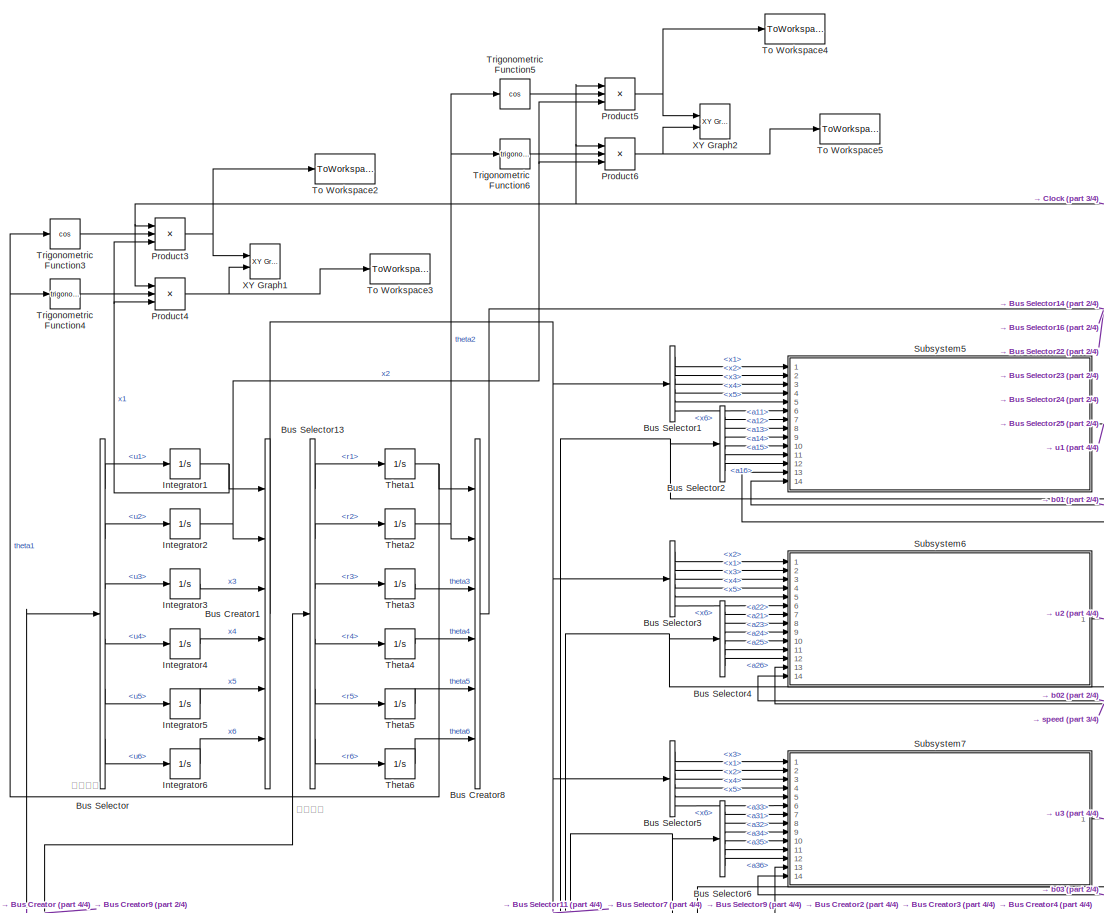
[diagram: root canvas - part 1/4, top left region]
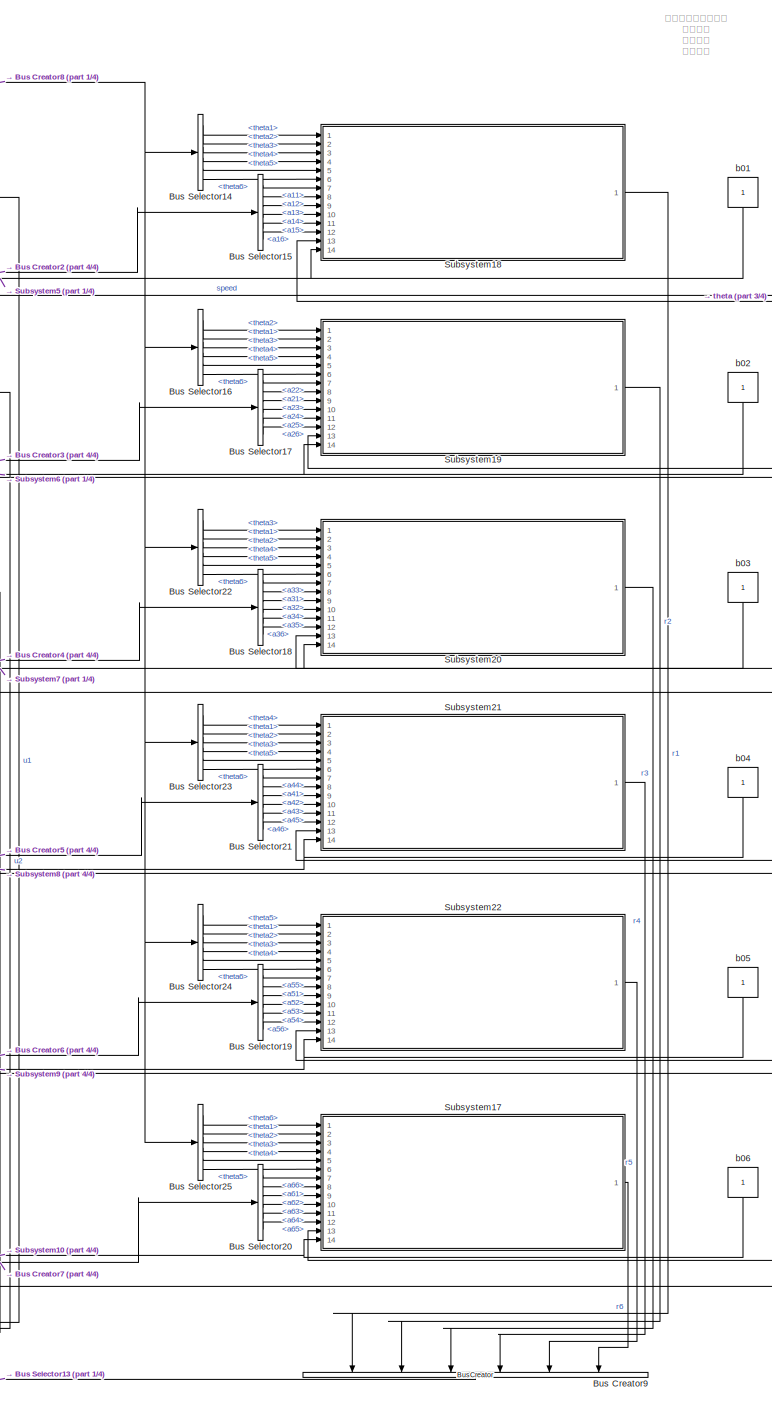
[diagram: root canvas - part 2/4, center side, full height]
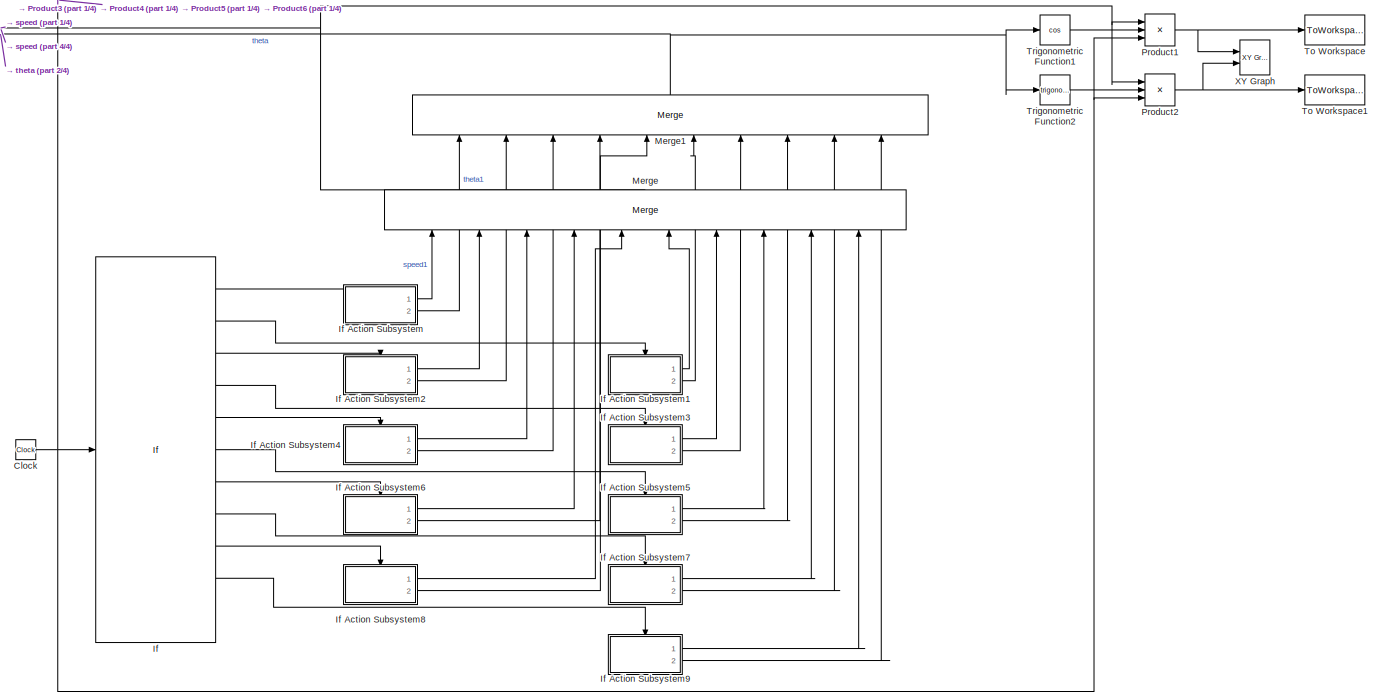
[diagram: root canvas - part 3/4, middle right region]
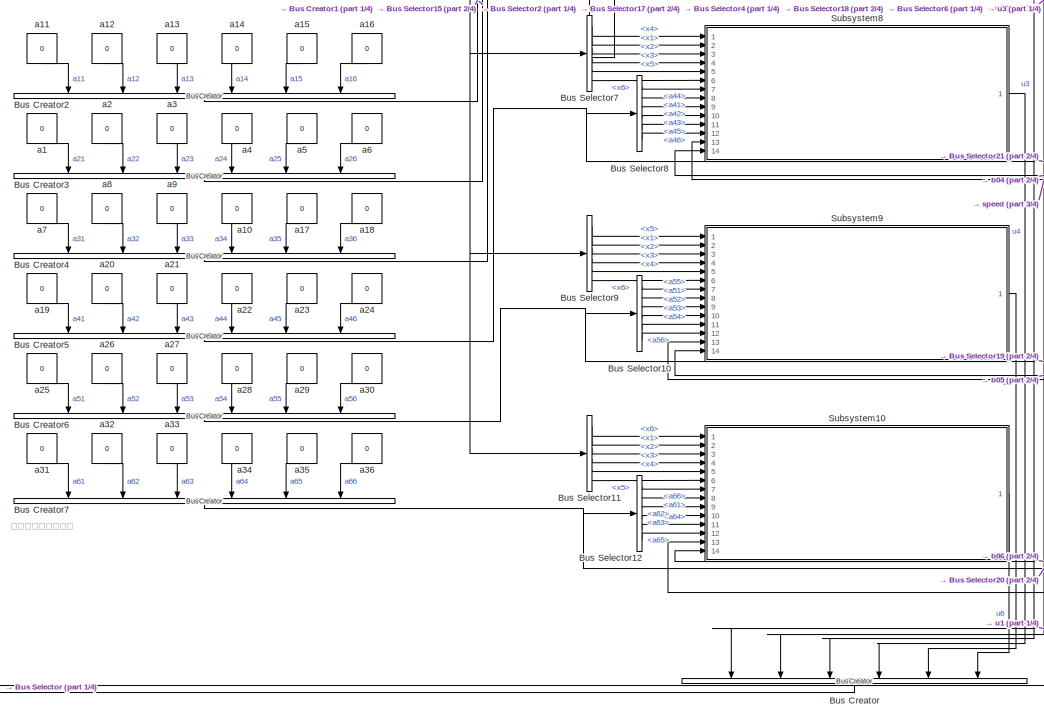
[diagram: root canvas - part 4/4, bottom left region]
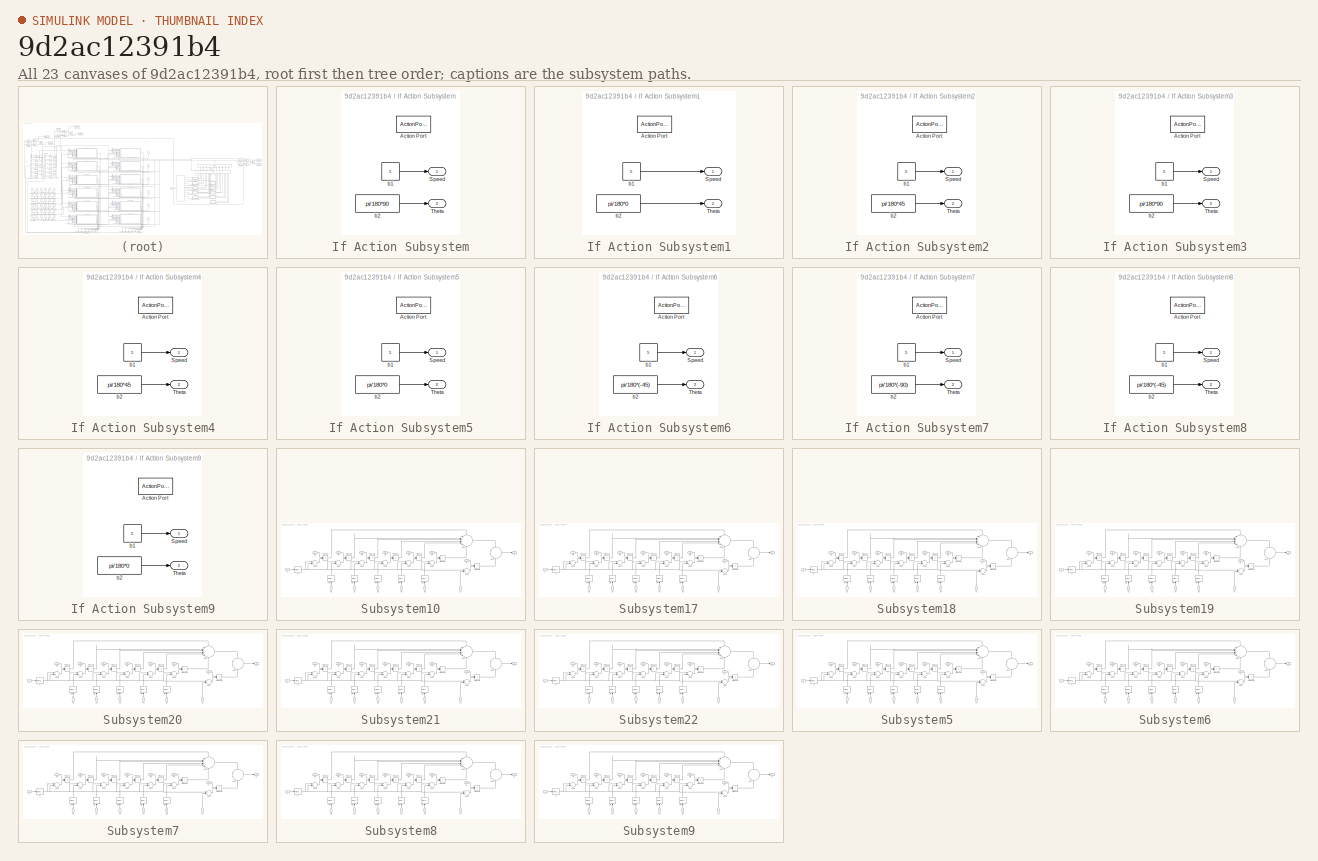
[diagram: thumbnail index - all 23 canvases of the model, root first then tree order]
MODEL slx_9d2ac12391b4
KIND model
CONFIG AbsTol = auto
CONFIG EnableMultiTasking = off
CONFIG FixedStep = 1
CONFIG MaxStep = auto
CONFIG MinStep = auto
CONFIG RelTol = 1e-3
CONFIG SampleTimeConstraint = Unconstrained
CONFIG Solver = FixedStepAuto
CONFIG SolverName = FixedStepAuto
CONFIG StartTime = 0.0
CONFIG StopTime = 300
BLOCK [BusCreator] Bus Creator
  DisplayOption = bar
  InheritFromInputs = on
  Inputs = 6
  Ports = [6, 1]
BLOCK [BusCreator] Bus Creator1
  DisplayOption = bar
  InheritFromInputs = on
  Inputs = 6
  Ports = [6, 1]
BLOCK [BusCreator] Bus Creator2
  DisplayOption = bar
  InheritFromInputs = on
  Inputs = 6
  Ports = [6, 1]
BLOCK [BusCreator] Bus Creator3
  DisplayOption = bar
  InheritFromInputs = on
  Inputs = 6
  Ports = [6, 1]
BLOCK [BusCreator] Bus Creator4
  DisplayOption = bar
  InheritFromInputs = on
  Inputs = 6
  Ports = [6, 1]
BLOCK [BusCreator] Bus Creator5
  DisplayOption = bar
  InheritFromInputs = on
  Inputs = 6
  Ports = [6, 1]
BLOCK [BusCreator] Bus Creator6
  DisplayOption = bar
  InheritFromInputs = on
  Inputs = 6
  Ports = [6, 1]
BLOCK [BusCreator] Bus Creator7
  DisplayOption = bar
  InheritFromInputs = on
  Inputs = 6
  Ports = [6, 1]
BLOCK [BusCreator] Bus Creator8
  DisplayOption = bar
  InheritFromInputs = on
  Inputs = 6
  Ports = [6, 1]
BLOCK [BusCreator] Bus Creator9
  DisplayOption = bar
  InheritFromInputs = on
  Inputs = 6
  Ports = [6, 1]
BLOCK [BusSelector] Bus Selector
  OutputAsBus = off
  OutputSignals = u1,u2,u3,u4,u5,u6
  Ports = [1, 6]
BLOCK [BusSelector] Bus Selector1
  OutputAsBus = off
  OutputSignals = x1,x2,x3,x4,x5,x6
  Ports = [1, 6]
BLOCK [BusSelector] Bus Selector10
  OutputAsBus = off
  OutputSignals = a55,a51,a52,a53,a54,a56
  Ports = [1, 6]
BLOCK [BusSelector] Bus Selector11
  OutputAsBus = off
  OutputSignals = x6,x1,x2,x3,x4,x5
  Ports = [1, 6]
BLOCK [BusSelector] Bus Selector12
  OutputAsBus = off
  OutputSignals = a66,a61,a62,a63,a64,a65
  Ports = [1, 6]
BLOCK [BusSelector] Bus Selector13
  OutputAsBus = off
  OutputSignals = r1,r2,r3,r4,r5,r6
  Ports = [1, 6]
BLOCK [BusSelector] Bus Selector14
  OutputAsBus = off
  OutputSignals = theta1,theta2,theta3,theta4,theta5,theta6
  Ports = [1, 6]
BLOCK [BusSelector] Bus Selector15
  OutputAsBus = off
  OutputSignals = a11,a12,a13,a14,a15,a16
  Ports = [1, 6]
BLOCK [BusSelector] Bus Selector16
  OutputAsBus = off
  OutputSignals = theta2,theta1,theta3,theta4,theta5,theta6
  Ports = [1, 6]
BLOCK [BusSelector] Bus Selector17
  OutputAsBus = off
  OutputSignals = a22,a21,a23,a24,a25,a26
  Ports = [1, 6]
BLOCK [BusSelector] Bus Selector18
  OutputAsBus = off
  OutputSignals = a33,a31,a32,a34,a35,a36
  Ports = [1, 6]
BLOCK [BusSelector] Bus Selector19
  OutputAsBus = off
  OutputSignals = a55,a51,a52,a53,a54,a56
  Ports = [1, 6]
BLOCK [BusSelector] Bus Selector2
  OutputAsBus = off
  OutputSignals = a11,a12,a13,a14,a15,a16
  Ports = [1, 6]
BLOCK [BusSelector] Bus Selector20
  OutputAsBus = off
  OutputSignals = a66,a61,a62,a63,a64,a65
  Ports = [1, 6]
BLOCK [BusSelector] Bus Selector21
  OutputAsBus = off
  OutputSignals = a44,a41,a42,a43,a45,a46
  Ports = [1, 6]
BLOCK [BusSelector] Bus Selector22
  OutputAsBus = off
  OutputSignals = theta3,theta1,theta2,theta4,theta5,theta6
  Ports = [1, 6]
BLOCK [BusSelector] Bus Selector23
  OutputAsBus = off
  OutputSignals = theta4,theta1,theta2,theta3,theta5,theta6
  Ports = [1, 6]
BLOCK [BusSelector] Bus Selector24
  OutputAsBus = off
  OutputSignals = theta5,theta1,theta2,theta3,theta4,theta6
  Ports = [1, 6]
BLOCK [BusSelector] Bus Selector25
  OutputAsBus = off
  OutputSignals = theta6,theta1,theta2,theta3,theta4,theta5
  Ports = [1, 6]
BLOCK [BusSelector] Bus Selector3
  OutputAsBus = off
  OutputSignals = x2,x1,x3,x4,x5,x6
  Ports = [1, 6]
BLOCK [BusSelector] Bus Selector4
  OutputAsBus = off
  OutputSignals = a22,a21,a23,a24,a25,a26
  Ports = [1, 6]
BLOCK [BusSelector] Bus Selector5
  OutputAsBus = off
  OutputSignals = x3,x1,x2,x4,x5,x6
  Ports = [1, 6]
BLOCK [BusSelector] Bus Selector6
  OutputAsBus = off
  OutputSignals = a33,a31,a32,a34,a35,a36
  Ports = [1, 6]
BLOCK [BusSelector] Bus Selector7
  OutputAsBus = off
  OutputSignals = x4,x1,x2,x3,x5,x6
  Ports = [1, 6]
BLOCK [BusSelector] Bus Selector8
  OutputAsBus = off
  OutputSignals = a44,a41,a42,a43,a45,a46
  Ports = [1, 6]
BLOCK [BusSelector] Bus Selector9
  OutputAsBus = off
  OutputSignals = x5,x1,x2,x3,x4,x6
  Ports = [1, 6]
BLOCK [Clock] Clock
  Decimation = 280
BLOCK [If] If
  ElseIfExpressions = u1 <= 60, u1 <= 90, u1 <= 120, u1 <= 150, u1 <= 180, u1 <= 210, u1 <= 240, u1 <= 270, u1 <= 300
  IfExpression = u1 <= 30
  Ports = [1, 11]
BLOCK [SubSystem] If Action Subsystem
  Ports = [0, 2, 0, 0, 0, 0, 0, 1]
  RequestExecContextInheritance = off
  TreatAsAtomicUnit = on
BLOCK [ActionPort] If Action Subsystem/Action Port
  ActionType = then
BLOCK [Outport] If Action Subsystem/Speed
  IconDisplay = Port number
BLOCK [Outport] If Action Subsystem/Theta
  IconDisplay = Port number
  Port = 2
BLOCK [Constant] If Action Subsystem/b1
  Value = 5
BLOCK [Constant] If Action Subsystem/b2
  Value = pi/180*90
BLOCK [SubSystem] If Action Subsystem1
  Ports = [0, 2, 0, 0, 0, 0, 0, 1]
  RequestExecContextInheritance = off
  TreatAsAtomicUnit = on
BLOCK [ActionPort] If Action Subsystem1/Action Port
  ActionType = elseif
BLOCK [Outport] If Action Subsystem1/Speed
  IconDisplay = Port number
BLOCK [Outport] If Action Subsystem1/Theta
  IconDisplay = Port number
  Port = 2
BLOCK [Constant] If Action Subsystem1/b1
  Value = 5
BLOCK [Constant] If Action Subsystem1/b2
  Value = pi/180*0
BLOCK [SubSystem] If Action Subsystem2
  Ports = [0, 2, 0, 0, 0, 0, 0, 1]
  RequestExecContextInheritance = off
  TreatAsAtomicUnit = on
BLOCK [ActionPort] If Action Subsystem2/Action Port
  ActionType = elseif
BLOCK [Outport] If Action Subsystem2/Speed
  IconDisplay = Port number
BLOCK [Outport] If Action Subsystem2/Theta
  IconDisplay = Port number
  Port = 2
BLOCK [Constant] If Action Subsystem2/b1
  Value = 5
BLOCK [Constant] If Action Subsystem2/b2
  Value = pi/180*45
BLOCK [SubSystem] If Action Subsystem3
  Ports = [0, 2, 0, 0, 0, 0, 0, 1]
  RequestExecContextInheritance = off
  TreatAsAtomicUnit = on
BLOCK [ActionPort] If Action Subsystem3/Action Port
  ActionType = elseif
BLOCK [Outport] If Action Subsystem3/Speed
  IconDisplay = Port number
BLOCK [Outport] If Action Subsystem3/Theta
  IconDisplay = Port number
  Port = 2
BLOCK [Constant] If Action Subsystem3/b1
  Value = 5
BLOCK [Constant] If Action Subsystem3/b2
  Value = pi/180*90
BLOCK [SubSystem] If Action Subsystem4
  Ports = [0, 2, 0, 0, 0, 0, 0, 1]
  RequestExecContextInheritance = off
  TreatAsAtomicUnit = on
BLOCK [ActionPort] If Action Subsystem4/Action Port
  ActionType = elseif
BLOCK [Outport] If Action Subsystem4/Speed
  IconDisplay = Port number
BLOCK [Outport] If Action Subsystem4/Theta
  IconDisplay = Port number
  Port = 2
BLOCK [Constant] If Action Subsystem4/b1
  Value = 5
BLOCK [Constant] If Action Subsystem4/b2
  Value = pi/180*45
BLOCK [SubSystem] If Action Subsystem5
  Ports = [0, 2, 0, 0, 0, 0, 0, 1]
  RequestExecContextInheritance = off
  TreatAsAtomicUnit = on
BLOCK [ActionPort] If Action Subsystem5/Action Port
  ActionType = elseif
BLOCK [Outport] If Action Subsystem5/Speed
  IconDisplay = Port number
BLOCK [Outport] If Action Subsystem5/Theta
  IconDisplay = Port number
  Port = 2
BLOCK [Constant] If Action Subsystem5/b1
  Value = 5
BLOCK [Constant] If Action Subsystem5/b2
  Value = pi/180*0
BLOCK [SubSystem] If Action Subsystem6
  Ports = [0, 2, 0, 0, 0, 0, 0, 1]
  RequestExecContextInheritance = off
  TreatAsAtomicUnit = on
BLOCK [ActionPort] If Action Subsystem6/Action Port
  ActionType = elseif
BLOCK [Outport] If Action Subsystem6/Speed
  IconDisplay = Port number
BLOCK [Outport] If Action Subsystem6/Theta
  IconDisplay = Port number
  Port = 2
BLOCK [Constant] If Action Subsystem6/b1
  Value = 5
BLOCK [Constant] If Action Subsystem6/b2
  Value = pi/180*(-45)
BLOCK [SubSystem] If Action Subsystem7
  Ports = [0, 2, 0, 0, 0, 0, 0, 1]
  RequestExecContextInheritance = off
  TreatAsAtomicUnit = on
BLOCK [ActionPort] If Action Subsystem7/Action Port
  ActionType = elseif
BLOCK [Outport] If Action Subsystem7/Speed
  IconDisplay = Port number
BLOCK [Outport] If Action Subsystem7/Theta
  IconDisplay = Port number
  Port = 2
BLOCK [Constant] If Action Subsystem7/b1
  Value = 5
BLOCK [Constant] If Action Subsystem7/b2
  Value = pi/180*(-90)
BLOCK [SubSystem] If Action Subsystem8
  Ports = [0, 2, 0, 0, 0, 0, 0, 1]
  RequestExecContextInheritance = off
  TreatAsAtomicUnit = on
BLOCK [ActionPort] If Action Subsystem8/Action Port
  ActionType = elseif
BLOCK [Outport] If Action Subsystem8/Speed
  IconDisplay = Port number
BLOCK [Outport] If Action Subsystem8/Theta
  IconDisplay = Port number
  Port = 2
BLOCK [Constant] If Action Subsystem8/b1
  Value = 5
BLOCK [Constant] If Action Subsystem8/b2
  Value = pi/180*(-45)
BLOCK [SubSystem] If Action Subsystem9
  Ports = [0, 2, 0, 0, 0, 0, 0, 1]
  RequestExecContextInheritance = off
  TreatAsAtomicUnit = on
BLOCK [ActionPort] If Action Subsystem9/Action Port
  ActionType = elseif
BLOCK [Outport] If Action Subsystem9/Speed
  IconDisplay = Port number
BLOCK [Outport] If Action Subsystem9/Theta
  IconDisplay = Port number
  Port = 2
BLOCK [Constant] If Action Subsystem9/b1
  Value = 5
BLOCK [Constant] If Action Subsystem9/b2
  Value = pi/180*0
BLOCK [Integrator] Integrator1
  InitialCondition = 2
  Ports = [1, 1]
BLOCK [Integrator] Integrator2
  InitialCondition = 4
  Ports = [1, 1]
BLOCK [Integrator] Integrator3
  InitialCondition = 6
  Ports = [1, 1]
BLOCK [Integrator] Integrator4
  InitialCondition = 8
  Ports = [1, 1]
BLOCK [Integrator] Integrator5
  InitialCondition = 10
  Ports = [1, 1]
BLOCK [Integrator] Integrator6
  InitialCondition = 2
  Ports = [1, 1]
BLOCK [Merge] Merge
  Inputs = 10
  Ports = [10, 1]
BLOCK [Merge] Merge1
  Inputs = 10
  Ports = [10, 1]
BLOCK [Product] Product1
  InputSameDT = off
  Inputs = 3
  OutDataTypeStr = Inherit: Inherit via internal rule
  Ports = [3, 1]
  RndMeth = Floor
  SaturateOnIntegerOverflow = off
BLOCK [Product] Product2
  InputSameDT = off
  Inputs = 3
  OutDataTypeStr = Inherit: Inherit via internal rule
  Ports = [3, 1]
  RndMeth = Floor
  SaturateOnIntegerOverflow = off
BLOCK [Product] Product3
  InputSameDT = off
  Inputs = 3
  OutDataTypeStr = Inherit: Inherit via internal rule
  Ports = [3, 1]
  RndMeth = Floor
  SaturateOnIntegerOverflow = off
BLOCK [Product] Product4
  InputSameDT = off
  Inputs = 3
  OutDataTypeStr = Inherit: Inherit via internal rule
  Ports = [3, 1]
  RndMeth = Floor
  SaturateOnIntegerOverflow = off
BLOCK [Product] Product5
  InputSameDT = off
  Inputs = 3
  OutDataTypeStr = Inherit: Inherit via internal rule
  Ports = [3, 1]
  RndMeth = Floor
  SaturateOnIntegerOverflow = off
BLOCK [Product] Product6
  InputSameDT = off
  Inputs = 3
  OutDataTypeStr = Inherit: Inherit via internal rule
  Ports = [3, 1]
  RndMeth = Floor
  SaturateOnIntegerOverflow = off
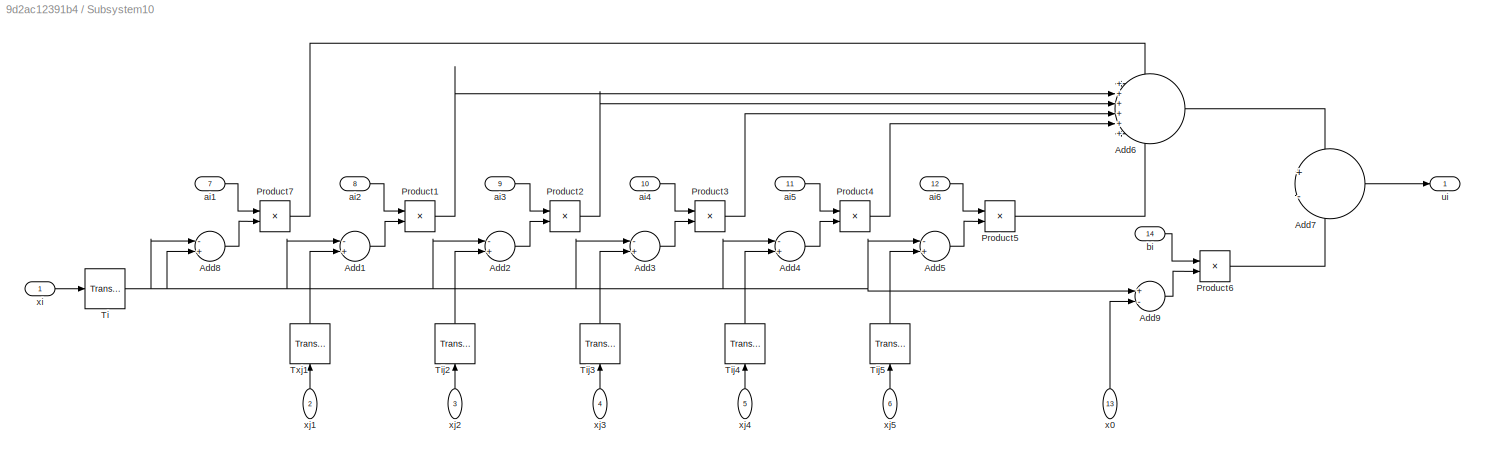
BLOCK [SubSystem] Subsystem10
  Ports = [14, 1]
  RequestExecContextInheritance = off
BLOCK [Sum] Subsystem10/Add1
  InputSameDT = off
  Inputs = -+
  OutDataTypeStr = Inherit: Inherit via internal rule
  Ports = [2, 1]
  SaturateOnIntegerOverflow = off
BLOCK [Sum] Subsystem10/Add2
  InputSameDT = off
  Inputs = -+
  OutDataTypeStr = Inherit: Inherit via internal rule
  Ports = [2, 1]
  SaturateOnIntegerOverflow = off
BLOCK [Sum] Subsystem10/Add3
  InputSameDT = off
  Inputs = -+
  OutDataTypeStr = Inherit: Inherit via internal rule
  Ports = [2, 1]
  SaturateOnIntegerOverflow = off
BLOCK [Sum] Subsystem10/Add4
  InputSameDT = off
  Inputs = -+
  OutDataTypeStr = Inherit: Inherit via internal rule
  Ports = [2, 1]
  SaturateOnIntegerOverflow = off
BLOCK [Sum] Subsystem10/Add5
  InputSameDT = off
  Inputs = -+
  OutDataTypeStr = Inherit: Inherit via internal rule
  Ports = [2, 1]
  SaturateOnIntegerOverflow = off
BLOCK [Sum] Subsystem10/Add6
  IconShape = round
  InputSameDT = off
  Inputs = ++++++
  OutDataTypeStr = Inherit: Inherit via internal rule
  Ports = [6, 1]
  SaturateOnIntegerOverflow = off
BLOCK [Sum] Subsystem10/Add7
  IconShape = round
  InputSameDT = off
  Inputs = +-
  OutDataTypeStr = Inherit: Inherit via internal rule
  Ports = [2, 1]
  SaturateOnIntegerOverflow = off
BLOCK [Sum] Subsystem10/Add8
  InputSameDT = off
  Inputs = -+
  OutDataTypeStr = Inherit: Inherit via internal rule
  Ports = [2, 1]
  SaturateOnIntegerOverflow = off
BLOCK [Sum] Subsystem10/Add9
  InputSameDT = off
  Inputs = +-
  OutDataTypeStr = Inherit: Inherit via internal rule
  Ports = [2, 1]
  SaturateOnIntegerOverflow = off
BLOCK [Product] Subsystem10/Product1
  InputSameDT = off
  OutDataTypeStr = Inherit: Inherit via internal rule
  Ports = [2, 1]
  RndMeth = Floor
  SaturateOnIntegerOverflow = off
BLOCK [Product] Subsystem10/Product2
  InputSameDT = off
  OutDataTypeStr = Inherit: Inherit via internal rule
  Ports = [2, 1]
  RndMeth = Floor
  SaturateOnIntegerOverflow = off
BLOCK [Product] Subsystem10/Product3
  InputSameDT = off
  OutDataTypeStr = Inherit: Inherit via internal rule
  Ports = [2, 1]
  RndMeth = Floor
  SaturateOnIntegerOverflow = off
BLOCK [Product] Subsystem10/Product4
  InputSameDT = off
  OutDataTypeStr = Inherit: Inherit via internal rule
  Ports = [2, 1]
  RndMeth = Floor
  SaturateOnIntegerOverflow = off
BLOCK [Product] Subsystem10/Product5
  InputSameDT = off
  OutDataTypeStr = Inherit: Inherit via internal rule
  Ports = [2, 1]
  RndMeth = Floor
  SaturateOnIntegerOverflow = off
BLOCK [Product] Subsystem10/Product6
  InputSameDT = off
  OutDataTypeStr = Inherit: Inherit via internal rule
  Ports = [2, 1]
  RndMeth = Floor
  SaturateOnIntegerOverflow = off
BLOCK [Product] Subsystem10/Product7
  InputSameDT = off
  OutDataTypeStr = Inherit: Inherit via internal rule
  Ports = [2, 1]
  RndMeth = Floor
  SaturateOnIntegerOverflow = off
BLOCK [TransportDelay] Subsystem10/Ti
  DelayTime = 0
  Ports = [1, 1]
BLOCK [TransportDelay] Subsystem10/Tij2
  DelayTime = 0
  Ports = [1, 1]
BLOCK [TransportDelay] Subsystem10/Tij3
  DelayTime = 0
  Ports = [1, 1]
BLOCK [TransportDelay] Subsystem10/Tij4
  DelayTime = 0
  Ports = [1, 1]
BLOCK [TransportDelay] Subsystem10/Tij5
  DelayTime = 0
  Ports = [1, 1]
BLOCK [TransportDelay] Subsystem10/Txj1
  DelayTime = 0
  Ports = [1, 1]
BLOCK [Inport] Subsystem10/ai1
  IconDisplay = Port number
  Port = 7
BLOCK [Inport] Subsystem10/ai2
  IconDisplay = Port number
  Port = 8
BLOCK [Inport] Subsystem10/ai3
  IconDisplay = Port number
  Port = 9
BLOCK [Inport] Subsystem10/ai4
  IconDisplay = Port number
  Port = 10
BLOCK [Inport] Subsystem10/ai5
  IconDisplay = Port number
  Port = 11
BLOCK [Inport] Subsystem10/ai6
  IconDisplay = Port number
  Port = 12
BLOCK [Inport] Subsystem10/bi
  IconDisplay = Port number
  Port = 14
BLOCK [Outport] Subsystem10/ui
  IconDisplay = Port number
BLOCK [Inport] Subsystem10/x0
  IconDisplay = Port number
  Port = 13
BLOCK [Inport] Subsystem10/xi
  IconDisplay = Port number
BLOCK [Inport] Subsystem10/xj1
  IconDisplay = Port number
  Port = 2
BLOCK [Inport] Subsystem10/xj2
  IconDisplay = Port number
  Port = 3
BLOCK [Inport] Subsystem10/xj3
  IconDisplay = Port number
  Port = 4
BLOCK [Inport] Subsystem10/xj4
  IconDisplay = Port number
  Port = 5
BLOCK [Inport] Subsystem10/xj5
  IconDisplay = Port number
  Port = 6
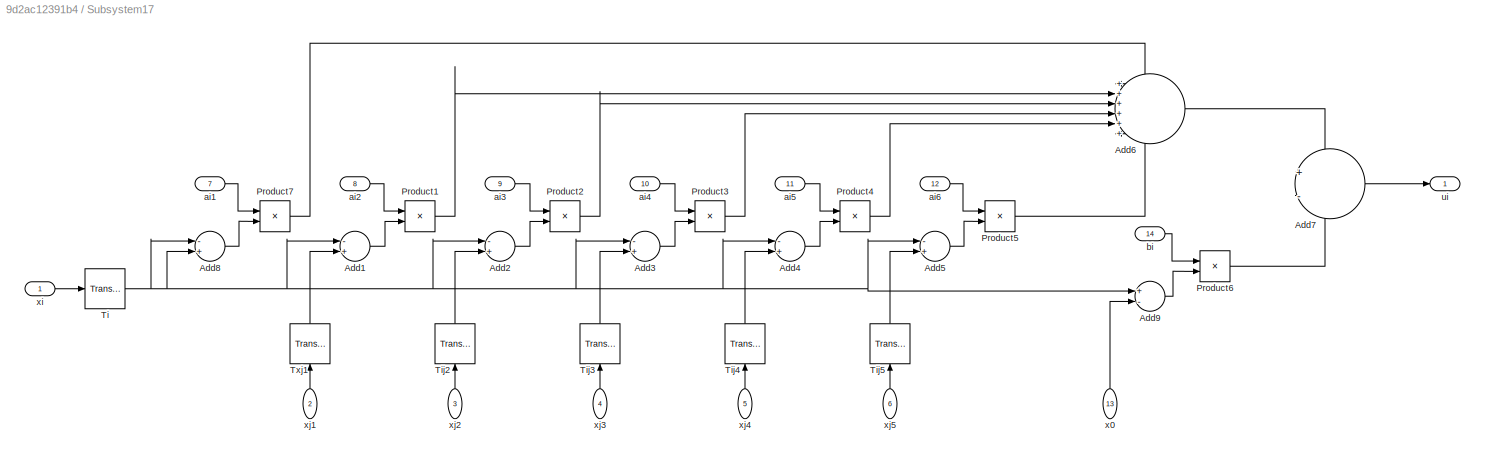
BLOCK [SubSystem] Subsystem17
  Ports = [14, 1]
  RequestExecContextInheritance = off
BLOCK [Sum] Subsystem17/Add1
  InputSameDT = off
  Inputs = -+
  OutDataTypeStr = Inherit: Inherit via internal rule
  Ports = [2, 1]
  SaturateOnIntegerOverflow = off
BLOCK [Sum] Subsystem17/Add2
  InputSameDT = off
  Inputs = -+
  OutDataTypeStr = Inherit: Inherit via internal rule
  Ports = [2, 1]
  SaturateOnIntegerOverflow = off
BLOCK [Sum] Subsystem17/Add3
  InputSameDT = off
  Inputs = -+
  OutDataTypeStr = Inherit: Inherit via internal rule
  Ports = [2, 1]
  SaturateOnIntegerOverflow = off
BLOCK [Sum] Subsystem17/Add4
  InputSameDT = off
  Inputs = -+
  OutDataTypeStr = Inherit: Inherit via internal rule
  Ports = [2, 1]
  SaturateOnIntegerOverflow = off
BLOCK [Sum] Subsystem17/Add5
  InputSameDT = off
  Inputs = -+
  OutDataTypeStr = Inherit: Inherit via internal rule
  Ports = [2, 1]
  SaturateOnIntegerOverflow = off
BLOCK [Sum] Subsystem17/Add6
  IconShape = round
  InputSameDT = off
  Inputs = ++++++
  OutDataTypeStr = Inherit: Inherit via internal rule
  Ports = [6, 1]
  SaturateOnIntegerOverflow = off
BLOCK [Sum] Subsystem17/Add7
  IconShape = round
  InputSameDT = off
  Inputs = +-
  OutDataTypeStr = Inherit: Inherit via internal rule
  Ports = [2, 1]
  SaturateOnIntegerOverflow = off
BLOCK [Sum] Subsystem17/Add8
  InputSameDT = off
  Inputs = -+
  OutDataTypeStr = Inherit: Inherit via internal rule
  Ports = [2, 1]
  SaturateOnIntegerOverflow = off
BLOCK [Sum] Subsystem17/Add9
  InputSameDT = off
  Inputs = +-
  OutDataTypeStr = Inherit: Inherit via internal rule
  Ports = [2, 1]
  SaturateOnIntegerOverflow = off
BLOCK [Product] Subsystem17/Product1
  InputSameDT = off
  OutDataTypeStr = Inherit: Inherit via internal rule
  Ports = [2, 1]
  RndMeth = Floor
  SaturateOnIntegerOverflow = off
BLOCK [Product] Subsystem17/Product2
  InputSameDT = off
  OutDataTypeStr = Inherit: Inherit via internal rule
  Ports = [2, 1]
  RndMeth = Floor
  SaturateOnIntegerOverflow = off
BLOCK [Product] Subsystem17/Product3
  InputSameDT = off
  OutDataTypeStr = Inherit: Inherit via internal rule
  Ports = [2, 1]
  RndMeth = Floor
  SaturateOnIntegerOverflow = off
BLOCK [Product] Subsystem17/Product4
  InputSameDT = off
  OutDataTypeStr = Inherit: Inherit via internal rule
  Ports = [2, 1]
  RndMeth = Floor
  SaturateOnIntegerOverflow = off
BLOCK [Product] Subsystem17/Product5
  InputSameDT = off
  OutDataTypeStr = Inherit: Inherit via internal rule
  Ports = [2, 1]
  RndMeth = Floor
  SaturateOnIntegerOverflow = off
BLOCK [Product] Subsystem17/Product6
  InputSameDT = off
  OutDataTypeStr = Inherit: Inherit via internal rule
  Ports = [2, 1]
  RndMeth = Floor
  SaturateOnIntegerOverflow = off
BLOCK [Product] Subsystem17/Product7
  InputSameDT = off
  OutDataTypeStr = Inherit: Inherit via internal rule
  Ports = [2, 1]
  RndMeth = Floor
  SaturateOnIntegerOverflow = off
BLOCK [TransportDelay] Subsystem17/Ti
  DelayTime = 0
  Ports = [1, 1]
BLOCK [TransportDelay] Subsystem17/Tij2
  DelayTime = 0
  Ports = [1, 1]
BLOCK [TransportDelay] Subsystem17/Tij3
  DelayTime = 0
  Ports = [1, 1]
BLOCK [TransportDelay] Subsystem17/Tij4
  DelayTime = 0
  Ports = [1, 1]
BLOCK [TransportDelay] Subsystem17/Tij5
  DelayTime = 0
  Ports = [1, 1]
BLOCK [TransportDelay] Subsystem17/Txj1
  DelayTime = 0
  Ports = [1, 1]
BLOCK [Inport] Subsystem17/ai1
  IconDisplay = Port number
  Port = 7
BLOCK [Inport] Subsystem17/ai2
  IconDisplay = Port number
  Port = 8
BLOCK [Inport] Subsystem17/ai3
  IconDisplay = Port number
  Port = 9
BLOCK [Inport] Subsystem17/ai4
  IconDisplay = Port number
  Port = 10
BLOCK [Inport] Subsystem17/ai5
  IconDisplay = Port number
  Port = 11
BLOCK [Inport] Subsystem17/ai6
  IconDisplay = Port number
  Port = 12
BLOCK [Inport] Subsystem17/bi
  IconDisplay = Port number
  Port = 14
BLOCK [Outport] Subsystem17/ui
  IconDisplay = Port number
BLOCK [Inport] Subsystem17/x0
  IconDisplay = Port number
  Port = 13
BLOCK [Inport] Subsystem17/xi
  IconDisplay = Port number
BLOCK [Inport] Subsystem17/xj1
  IconDisplay = Port number
  Port = 2
BLOCK [Inport] Subsystem17/xj2
  IconDisplay = Port number
  Port = 3
BLOCK [Inport] Subsystem17/xj3
  IconDisplay = Port number
  Port = 4
BLOCK [Inport] Subsystem17/xj4
  IconDisplay = Port number
  Port = 5
BLOCK [Inport] Subsystem17/xj5
  IconDisplay = Port number
  Port = 6
BLOCK [SubSystem] Subsystem18
  Ports = [14, 1]
  RequestExecContextInheritance = off
BLOCK [Sum] Subsystem18/Add1
  InputSameDT = off
  Inputs = -+
  OutDataTypeStr = Inherit: Inherit via internal rule
  Ports = [2, 1]
  SaturateOnIntegerOverflow = off
BLOCK [Sum] Subsystem18/Add2
  InputSameDT = off
  Inputs = -+
  OutDataTypeStr = Inherit: Inherit via internal rule
  Ports = [2, 1]
  SaturateOnIntegerOverflow = off
BLOCK [Sum] Subsystem18/Add3
  InputSameDT = off
  Inputs = -+
  OutDataTypeStr = Inherit: Inherit via internal rule
  Ports = [2, 1]
  SaturateOnIntegerOverflow = off
BLOCK [Sum] Subsystem18/Add4
  InputSameDT = off
  Inputs = -+
  OutDataTypeStr = Inherit: Inherit via internal rule
  Ports = [2, 1]
  SaturateOnIntegerOverflow = off
BLOCK [Sum] Subsystem18/Add5
  InputSameDT = off
  Inputs = -+
  OutDataTypeStr = Inherit: Inherit via internal rule
  Ports = [2, 1]
  SaturateOnIntegerOverflow = off
BLOCK [Sum] Subsystem18/Add6
  IconShape = round
  InputSameDT = off
  Inputs = ++++++
  OutDataTypeStr = Inherit: Inherit via internal rule
  Ports = [6, 1]
  SaturateOnIntegerOverflow = off
BLOCK [Sum] Subsystem18/Add7
  IconShape = round
  InputSameDT = off
  Inputs = +-
  OutDataTypeStr = Inherit: Inherit via internal rule
  Ports = [2, 1]
  SaturateOnIntegerOverflow = off
BLOCK [Sum] Subsystem18/Add8
  InputSameDT = off
  Inputs = -+
  OutDataTypeStr = Inherit: Inherit via internal rule
  Ports = [2, 1]
  SaturateOnIntegerOverflow = off
BLOCK [Sum] Subsystem18/Add9
  InputSameDT = off
  Inputs = +-
  OutDataTypeStr = Inherit: Inherit via internal rule
  Ports = [2, 1]
  SaturateOnIntegerOverflow = off
BLOCK [Product] Subsystem18/Product1
  InputSameDT = off
  OutDataTypeStr = Inherit: Inherit via internal rule
  Ports = [2, 1]
  RndMeth = Floor
  SaturateOnIntegerOverflow = off
BLOCK [Product] Subsystem18/Product2
  InputSameDT = off
  OutDataTypeStr = Inherit: Inherit via internal rule
  Ports = [2, 1]
  RndMeth = Floor
  SaturateOnIntegerOverflow = off
BLOCK [Product] Subsystem18/Product3
  InputSameDT = off
  OutDataTypeStr = Inherit: Inherit via internal rule
  Ports = [2, 1]
  RndMeth = Floor
  SaturateOnIntegerOverflow = off
BLOCK [Product] Subsystem18/Product4
  InputSameDT = off
  OutDataTypeStr = Inherit: Inherit via internal rule
  Ports = [2, 1]
  RndMeth = Floor
  SaturateOnIntegerOverflow = off
BLOCK [Product] Subsystem18/Product5
  InputSameDT = off
  OutDataTypeStr = Inherit: Inherit via internal rule
  Ports = [2, 1]
  RndMeth = Floor
  SaturateOnIntegerOverflow = off
BLOCK [Product] Subsystem18/Product6
  InputSameDT = off
  OutDataTypeStr = Inherit: Inherit via internal rule
  Ports = [2, 1]
  RndMeth = Floor
  SaturateOnIntegerOverflow = off
BLOCK [Product] Subsystem18/Product7
  InputSameDT = off
  OutDataTypeStr = Inherit: Inherit via internal rule
  Ports = [2, 1]
  RndMeth = Floor
  SaturateOnIntegerOverflow = off
BLOCK [TransportDelay] Subsystem18/Ti
  DelayTime = 0
  Ports = [1, 1]
BLOCK [TransportDelay] Subsystem18/Tij2
  DelayTime = 0
  Ports = [1, 1]
BLOCK [TransportDelay] Subsystem18/Tij3
  DelayTime = 0
  Ports = [1, 1]
BLOCK [TransportDelay] Subsystem18/Tij4
  DelayTime = 0
  Ports = [1, 1]
BLOCK [TransportDelay] Subsystem18/Tij5
  DelayTime = 0
  Ports = [1, 1]
BLOCK [TransportDelay] Subsystem18/Txj1
  DelayTime = 0
  Ports = [1, 1]
BLOCK [Inport] Subsystem18/ai1
  IconDisplay = Port number
  Port = 7
BLOCK [Inport] Subsystem18/ai2
  IconDisplay = Port number
  Port = 8
BLOCK [Inport] Subsystem18/ai3
  IconDisplay = Port number
  Port = 9
BLOCK [Inport] Subsystem18/ai4
  IconDisplay = Port number
  Port = 10
BLOCK [Inport] Subsystem18/ai5
  IconDisplay = Port number
  Port = 11
BLOCK [Inport] Subsystem18/ai6
  IconDisplay = Port number
  Port = 12
BLOCK [Inport] Subsystem18/bi
  IconDisplay = Port number
  Port = 14
BLOCK [Outport] Subsystem18/ui
  IconDisplay = Port number
BLOCK [Inport] Subsystem18/x0
  IconDisplay = Port number
  Port = 13
BLOCK [Inport] Subsystem18/xi
  IconDisplay = Port number
BLOCK [Inport] Subsystem18/xj1
  IconDisplay = Port number
  Port = 2
BLOCK [Inport] Subsystem18/xj2
  IconDisplay = Port number
  Port = 3
BLOCK [Inport] Subsystem18/xj3
  IconDisplay = Port number
  Port = 4
BLOCK [Inport] Subsystem18/xj4
  IconDisplay = Port number
  Port = 5
BLOCK [Inport] Subsystem18/xj5
  IconDisplay = Port number
  Port = 6
BLOCK [SubSystem] Subsystem19
  Ports = [14, 1]
  RequestExecContextInheritance = off
BLOCK [Sum] Subsystem19/Add1
  InputSameDT = off
  Inputs = -+
  OutDataTypeStr = Inherit: Inherit via internal rule
  Ports = [2, 1]
  SaturateOnIntegerOverflow = off
BLOCK [Sum] Subsystem19/Add2
  InputSameDT = off
  Inputs = -+
  OutDataTypeStr = Inherit: Inherit via internal rule
  Ports = [2, 1]
  SaturateOnIntegerOverflow = off
BLOCK [Sum] Subsystem19/Add3
  InputSameDT = off
  Inputs = -+
  OutDataTypeStr = Inherit: Inherit via internal rule
  Ports = [2, 1]
  SaturateOnIntegerOverflow = off
BLOCK [Sum] Subsystem19/Add4
  InputSameDT = off
  Inputs = -+
  OutDataTypeStr = Inherit: Inherit via internal rule
  Ports = [2, 1]
  SaturateOnIntegerOverflow = off
BLOCK [Sum] Subsystem19/Add5
  InputSameDT = off
  Inputs = -+
  OutDataTypeStr = Inherit: Inherit via internal rule
  Ports = [2, 1]
  SaturateOnIntegerOverflow = off
BLOCK [Sum] Subsystem19/Add6
  IconShape = round
  InputSameDT = off
  Inputs = ++++++
  OutDataTypeStr = Inherit: Inherit via internal rule
  Ports = [6, 1]
  SaturateOnIntegerOverflow = off
BLOCK [Sum] Subsystem19/Add7
  IconShape = round
  InputSameDT = off
  Inputs = +-
  OutDataTypeStr = Inherit: Inherit via internal rule
  Ports = [2, 1]
  SaturateOnIntegerOverflow = off
BLOCK [Sum] Subsystem19/Add8
  InputSameDT = off
  Inputs = -+
  OutDataTypeStr = Inherit: Inherit via internal rule
  Ports = [2, 1]
  SaturateOnIntegerOverflow = off
BLOCK [Sum] Subsystem19/Add9
  InputSameDT = off
  Inputs = +-
  OutDataTypeStr = Inherit: Inherit via internal rule
  Ports = [2, 1]
  SaturateOnIntegerOverflow = off
BLOCK [Product] Subsystem19/Product1
  InputSameDT = off
  OutDataTypeStr = Inherit: Inherit via internal rule
  Ports = [2, 1]
  RndMeth = Floor
  SaturateOnIntegerOverflow = off
BLOCK [Product] Subsystem19/Product2
  InputSameDT = off
  OutDataTypeStr = Inherit: Inherit via internal rule
  Ports = [2, 1]
  RndMeth = Floor
  SaturateOnIntegerOverflow = off
BLOCK [Product] Subsystem19/Product3
  InputSameDT = off
  OutDataTypeStr = Inherit: Inherit via internal rule
  Ports = [2, 1]
  RndMeth = Floor
  SaturateOnIntegerOverflow = off
BLOCK [Product] Subsystem19/Product4
  InputSameDT = off
  OutDataTypeStr = Inherit: Inherit via internal rule
  Ports = [2, 1]
  RndMeth = Floor
  SaturateOnIntegerOverflow = off
BLOCK [Product] Subsystem19/Product5
  InputSameDT = off
  OutDataTypeStr = Inherit: Inherit via internal rule
  Ports = [2, 1]
  RndMeth = Floor
  SaturateOnIntegerOverflow = off
BLOCK [Product] Subsystem19/Product6
  InputSameDT = off
  OutDataTypeStr = Inherit: Inherit via internal rule
  Ports = [2, 1]
  RndMeth = Floor
  SaturateOnIntegerOverflow = off
BLOCK [Product] Subsystem19/Product7
  InputSameDT = off
  OutDataTypeStr = Inherit: Inherit via internal rule
  Ports = [2, 1]
  RndMeth = Floor
  SaturateOnIntegerOverflow = off
BLOCK [TransportDelay] Subsystem19/Ti
  DelayTime = 0
  Ports = [1, 1]
BLOCK [TransportDelay] Subsystem19/Tij2
  DelayTime = 0
  Ports = [1, 1]
BLOCK [TransportDelay] Subsystem19/Tij3
  DelayTime = 0
  Ports = [1, 1]
BLOCK [TransportDelay] Subsystem19/Tij4
  DelayTime = 0
  Ports = [1, 1]
BLOCK [TransportDelay] Subsystem19/Tij5
  DelayTime = 0
  Ports = [1, 1]
BLOCK [TransportDelay] Subsystem19/Txj1
  DelayTime = 0
  Ports = [1, 1]
BLOCK [Inport] Subsystem19/ai1
  IconDisplay = Port number
  Port = 7
BLOCK [Inport] Subsystem19/ai2
  IconDisplay = Port number
  Port = 8
BLOCK [Inport] Subsystem19/ai3
  IconDisplay = Port number
  Port = 9
BLOCK [Inport] Subsystem19/ai4
  IconDisplay = Port number
  Port = 10
BLOCK [Inport] Subsystem19/ai5
  IconDisplay = Port number
  Port = 11
BLOCK [Inport] Subsystem19/ai6
  IconDisplay = Port number
  Port = 12
BLOCK [Inport] Subsystem19/bi
  IconDisplay = Port number
  Port = 14
BLOCK [Outport] Subsystem19/ui
  IconDisplay = Port number
BLOCK [Inport] Subsystem19/x0
  IconDisplay = Port number
  Port = 13
BLOCK [Inport] Subsystem19/xi
  IconDisplay = Port number
BLOCK [Inport] Subsystem19/xj1
  IconDisplay = Port number
  Port = 2
BLOCK [Inport] Subsystem19/xj2
  IconDisplay = Port number
  Port = 3
BLOCK [Inport] Subsystem19/xj3
  IconDisplay = Port number
  Port = 4
BLOCK [Inport] Subsystem19/xj4
  IconDisplay = Port number
  Port = 5
BLOCK [Inport] Subsystem19/xj5
  IconDisplay = Port number
  Port = 6
BLOCK [SubSystem] Subsystem20
  Ports = [14, 1]
  RequestExecContextInheritance = off
BLOCK [Sum] Subsystem20/Add1
  InputSameDT = off
  Inputs = -+
  OutDataTypeStr = Inherit: Inherit via internal rule
  Ports = [2, 1]
  SaturateOnIntegerOverflow = off
BLOCK [Sum] Subsystem20/Add2
  InputSameDT = off
  Inputs = -+
  OutDataTypeStr = Inherit: Inherit via internal rule
  Ports = [2, 1]
  SaturateOnIntegerOverflow = off
BLOCK [Sum] Subsystem20/Add3
  InputSameDT = off
  Inputs = -+
  OutDataTypeStr = Inherit: Inherit via internal rule
  Ports = [2, 1]
  SaturateOnIntegerOverflow = off
BLOCK [Sum] Subsystem20/Add4
  InputSameDT = off
  Inputs = -+
  OutDataTypeStr = Inherit: Inherit via internal rule
  Ports = [2, 1]
  SaturateOnIntegerOverflow = off
BLOCK [Sum] Subsystem20/Add5
  InputSameDT = off
  Inputs = -+
  OutDataTypeStr = Inherit: Inherit via internal rule
  Ports = [2, 1]
  SaturateOnIntegerOverflow = off
BLOCK [Sum] Subsystem20/Add6
  IconShape = round
  InputSameDT = off
  Inputs = ++++++
  OutDataTypeStr = Inherit: Inherit via internal rule
  Ports = [6, 1]
  SaturateOnIntegerOverflow = off
BLOCK [Sum] Subsystem20/Add7
  IconShape = round
  InputSameDT = off
  Inputs = +-
  OutDataTypeStr = Inherit: Inherit via internal rule
  Ports = [2, 1]
  SaturateOnIntegerOverflow = off
BLOCK [Sum] Subsystem20/Add8
  InputSameDT = off
  Inputs = -+
  OutDataTypeStr = Inherit: Inherit via internal rule
  Ports = [2, 1]
  SaturateOnIntegerOverflow = off
BLOCK [Sum] Subsystem20/Add9
  InputSameDT = off
  Inputs = +-
  OutDataTypeStr = Inherit: Inherit via internal rule
  Ports = [2, 1]
  SaturateOnIntegerOverflow = off
BLOCK [Product] Subsystem20/Product1
  InputSameDT = off
  OutDataTypeStr = Inherit: Inherit via internal rule
  Ports = [2, 1]
  RndMeth = Floor
  SaturateOnIntegerOverflow = off
BLOCK [Product] Subsystem20/Product2
  InputSameDT = off
  OutDataTypeStr = Inherit: Inherit via internal rule
  Ports = [2, 1]
  RndMeth = Floor
  SaturateOnIntegerOverflow = off
BLOCK [Product] Subsystem20/Product3
  InputSameDT = off
  OutDataTypeStr = Inherit: Inherit via internal rule
  Ports = [2, 1]
  RndMeth = Floor
  SaturateOnIntegerOverflow = off
BLOCK [Product] Subsystem20/Product4
  InputSameDT = off
  OutDataTypeStr = Inherit: Inherit via internal rule
  Ports = [2, 1]
  RndMeth = Floor
  SaturateOnIntegerOverflow = off
BLOCK [Product] Subsystem20/Product5
  InputSameDT = off
  OutDataTypeStr = Inherit: Inherit via internal rule
  Ports = [2, 1]
  RndMeth = Floor
  SaturateOnIntegerOverflow = off
BLOCK [Product] Subsystem20/Product6
  InputSameDT = off
  OutDataTypeStr = Inherit: Inherit via internal rule
  Ports = [2, 1]
  RndMeth = Floor
  SaturateOnIntegerOverflow = off
BLOCK [Product] Subsystem20/Product7
  InputSameDT = off
  OutDataTypeStr = Inherit: Inherit via internal rule
  Ports = [2, 1]
  RndMeth = Floor
  SaturateOnIntegerOverflow = off
BLOCK [TransportDelay] Subsystem20/Ti
  DelayTime = 0
  Ports = [1, 1]
BLOCK [TransportDelay] Subsystem20/Tij2
  DelayTime = 0
  Ports = [1, 1]
BLOCK [TransportDelay] Subsystem20/Tij3
  DelayTime = 0
  Ports = [1, 1]
BLOCK [TransportDelay] Subsystem20/Tij4
  DelayTime = 0
  Ports = [1, 1]
BLOCK [TransportDelay] Subsystem20/Tij5
  DelayTime = 0
  Ports = [1, 1]
BLOCK [TransportDelay] Subsystem20/Txj1
  DelayTime = 0
  Ports = [1, 1]
BLOCK [Inport] Subsystem20/ai1
  IconDisplay = Port number
  Port = 7
BLOCK [Inport] Subsystem20/ai2
  IconDisplay = Port number
  Port = 8
BLOCK [Inport] Subsystem20/ai3
  IconDisplay = Port number
  Port = 9
BLOCK [Inport] Subsystem20/ai4
  IconDisplay = Port number
  Port = 10
BLOCK [Inport] Subsystem20/ai5
  IconDisplay = Port number
  Port = 11
BLOCK [Inport] Subsystem20/ai6
  IconDisplay = Port number
  Port = 12
BLOCK [Inport] Subsystem20/bi
  IconDisplay = Port number
  Port = 14
BLOCK [Outport] Subsystem20/ui
  IconDisplay = Port number
BLOCK [Inport] Subsystem20/x0
  IconDisplay = Port number
  Port = 13
BLOCK [Inport] Subsystem20/xi
  IconDisplay = Port number
BLOCK [Inport] Subsystem20/xj1
  IconDisplay = Port number
  Port = 2
BLOCK [Inport] Subsystem20/xj2
  IconDisplay = Port number
  Port = 3
BLOCK [Inport] Subsystem20/xj3
  IconDisplay = Port number
  Port = 4
BLOCK [Inport] Subsystem20/xj4
  IconDisplay = Port number
  Port = 5
BLOCK [Inport] Subsystem20/xj5
  IconDisplay = Port number
  Port = 6
BLOCK [SubSystem] Subsystem21
  Ports = [14, 1]
  RequestExecContextInheritance = off
BLOCK [Sum] Subsystem21/Add1
  InputSameDT = off
  Inputs = -+
  OutDataTypeStr = Inherit: Inherit via internal rule
  Ports = [2, 1]
  SaturateOnIntegerOverflow = off
BLOCK [Sum] Subsystem21/Add2
  InputSameDT = off
  Inputs = -+
  OutDataTypeStr = Inherit: Inherit via internal rule
  Ports = [2, 1]
  SaturateOnIntegerOverflow = off
BLOCK [Sum] Subsystem21/Add3
  InputSameDT = off
  Inputs = -+
  OutDataTypeStr = Inherit: Inherit via internal rule
  Ports = [2, 1]
  SaturateOnIntegerOverflow = off
BLOCK [Sum] Subsystem21/Add4
  InputSameDT = off
  Inputs = -+
  OutDataTypeStr = Inherit: Inherit via internal rule
  Ports = [2, 1]
  SaturateOnIntegerOverflow = off
BLOCK [Sum] Subsystem21/Add5
  InputSameDT = off
  Inputs = -+
  OutDataTypeStr = Inherit: Inherit via internal rule
  Ports = [2, 1]
  SaturateOnIntegerOverflow = off
BLOCK [Sum] Subsystem21/Add6
  IconShape = round
  InputSameDT = off
  Inputs = ++++++
  OutDataTypeStr = Inherit: Inherit via internal rule
  Ports = [6, 1]
  SaturateOnIntegerOverflow = off
BLOCK [Sum] Subsystem21/Add7
  IconShape = round
  InputSameDT = off
  Inputs = +-
  OutDataTypeStr = Inherit: Inherit via internal rule
  Ports = [2, 1]
  SaturateOnIntegerOverflow = off
BLOCK [Sum] Subsystem21/Add8
  InputSameDT = off
  Inputs = -+
  OutDataTypeStr = Inherit: Inherit via internal rule
  Ports = [2, 1]
  SaturateOnIntegerOverflow = off
BLOCK [Sum] Subsystem21/Add9
  InputSameDT = off
  Inputs = +-
  OutDataTypeStr = Inherit: Inherit via internal rule
  Ports = [2, 1]
  SaturateOnIntegerOverflow = off
BLOCK [Product] Subsystem21/Product1
  InputSameDT = off
  OutDataTypeStr = Inherit: Inherit via internal rule
  Ports = [2, 1]
  RndMeth = Floor
  SaturateOnIntegerOverflow = off
BLOCK [Product] Subsystem21/Product2
  InputSameDT = off
  OutDataTypeStr = Inherit: Inherit via internal rule
  Ports = [2, 1]
  RndMeth = Floor
  SaturateOnIntegerOverflow = off
BLOCK [Product] Subsystem21/Product3
  InputSameDT = off
  OutDataTypeStr = Inherit: Inherit via internal rule
  Ports = [2, 1]
  RndMeth = Floor
  SaturateOnIntegerOverflow = off
BLOCK [Product] Subsystem21/Product4
  InputSameDT = off
  OutDataTypeStr = Inherit: Inherit via internal rule
  Ports = [2, 1]
  RndMeth = Floor
  SaturateOnIntegerOverflow = off
BLOCK [Product] Subsystem21/Product5
  InputSameDT = off
  OutDataTypeStr = Inherit: Inherit via internal rule
  Ports = [2, 1]
  RndMeth = Floor
  SaturateOnIntegerOverflow = off
BLOCK [Product] Subsystem21/Product6
  InputSameDT = off
  OutDataTypeStr = Inherit: Inherit via internal rule
  Ports = [2, 1]
  RndMeth = Floor
  SaturateOnIntegerOverflow = off
BLOCK [Product] Subsystem21/Product7
  InputSameDT = off
  OutDataTypeStr = Inherit: Inherit via internal rule
  Ports = [2, 1]
  RndMeth = Floor
  SaturateOnIntegerOverflow = off
BLOCK [TransportDelay] Subsystem21/Ti
  DelayTime = 0
  Ports = [1, 1]
BLOCK [TransportDelay] Subsystem21/Tij2
  DelayTime = 0
  Ports = [1, 1]
BLOCK [TransportDelay] Subsystem21/Tij3
  DelayTime = 0
  Ports = [1, 1]
BLOCK [TransportDelay] Subsystem21/Tij4
  DelayTime = 0
  Ports = [1, 1]
BLOCK [TransportDelay] Subsystem21/Tij5
  DelayTime = 0
  Ports = [1, 1]
BLOCK [TransportDelay] Subsystem21/Txj1
  DelayTime = 0
  Ports = [1, 1]
BLOCK [Inport] Subsystem21/ai1
  IconDisplay = Port number
  Port = 7
BLOCK [Inport] Subsystem21/ai2
  IconDisplay = Port number
  Port = 8
BLOCK [Inport] Subsystem21/ai3
  IconDisplay = Port number
  Port = 9
BLOCK [Inport] Subsystem21/ai4
  IconDisplay = Port number
  Port = 10
BLOCK [Inport] Subsystem21/ai5
  IconDisplay = Port number
  Port = 11
BLOCK [Inport] Subsystem21/ai6
  IconDisplay = Port number
  Port = 12
BLOCK [Inport] Subsystem21/bi
  IconDisplay = Port number
  Port = 14
BLOCK [Outport] Subsystem21/ui
  IconDisplay = Port number
BLOCK [Inport] Subsystem21/x0
  IconDisplay = Port number
  Port = 13
BLOCK [Inport] Subsystem21/xi
  IconDisplay = Port number
BLOCK [Inport] Subsystem21/xj1
  IconDisplay = Port number
  Port = 2
BLOCK [Inport] Subsystem21/xj2
  IconDisplay = Port number
  Port = 3
BLOCK [Inport] Subsystem21/xj3
  IconDisplay = Port number
  Port = 4
BLOCK [Inport] Subsystem21/xj4
  IconDisplay = Port number
  Port = 5
BLOCK [Inport] Subsystem21/xj5
  IconDisplay = Port number
  Port = 6
BLOCK [SubSystem] Subsystem22
  Ports = [14, 1]
  RequestExecContextInheritance = off
BLOCK [Sum] Subsystem22/Add1
  InputSameDT = off
  Inputs = -+
  OutDataTypeStr = Inherit: Inherit via internal rule
  Ports = [2, 1]
  SaturateOnIntegerOverflow = off
BLOCK [Sum] Subsystem22/Add2
  InputSameDT = off
  Inputs = -+
  OutDataTypeStr = Inherit: Inherit via internal rule
  Ports = [2, 1]
  SaturateOnIntegerOverflow = off
BLOCK [Sum] Subsystem22/Add3
  InputSameDT = off
  Inputs = -+
  OutDataTypeStr = Inherit: Inherit via internal rule
  Ports = [2, 1]
  SaturateOnIntegerOverflow = off
BLOCK [Sum] Subsystem22/Add4
  InputSameDT = off
  Inputs = -+
  OutDataTypeStr = Inherit: Inherit via internal rule
  Ports = [2, 1]
  SaturateOnIntegerOverflow = off
BLOCK [Sum] Subsystem22/Add5
  InputSameDT = off
  Inputs = -+
  OutDataTypeStr = Inherit: Inherit via internal rule
  Ports = [2, 1]
  SaturateOnIntegerOverflow = off
BLOCK [Sum] Subsystem22/Add6
  IconShape = round
  InputSameDT = off
  Inputs = ++++++
  OutDataTypeStr = Inherit: Inherit via internal rule
  Ports = [6, 1]
  SaturateOnIntegerOverflow = off
BLOCK [Sum] Subsystem22/Add7
  IconShape = round
  InputSameDT = off
  Inputs = +-
  OutDataTypeStr = Inherit: Inherit via internal rule
  Ports = [2, 1]
  SaturateOnIntegerOverflow = off
BLOCK [Sum] Subsystem22/Add8
  InputSameDT = off
  Inputs = -+
  OutDataTypeStr = Inherit: Inherit via internal rule
  Ports = [2, 1]
  SaturateOnIntegerOverflow = off
BLOCK [Sum] Subsystem22/Add9
  InputSameDT = off
  Inputs = +-
  OutDataTypeStr = Inherit: Inherit via internal rule
  Ports = [2, 1]
  SaturateOnIntegerOverflow = off
BLOCK [Product] Subsystem22/Product1
  InputSameDT = off
  OutDataTypeStr = Inherit: Inherit via internal rule
  Ports = [2, 1]
  RndMeth = Floor
  SaturateOnIntegerOverflow = off
BLOCK [Product] Subsystem22/Product2
  InputSameDT = off
  OutDataTypeStr = Inherit: Inherit via internal rule
  Ports = [2, 1]
  RndMeth = Floor
  SaturateOnIntegerOverflow = off
BLOCK [Product] Subsystem22/Product3
  InputSameDT = off
  OutDataTypeStr = Inherit: Inherit via internal rule
  Ports = [2, 1]
  RndMeth = Floor
  SaturateOnIntegerOverflow = off
BLOCK [Product] Subsystem22/Product4
  InputSameDT = off
  OutDataTypeStr = Inherit: Inherit via internal rule
  Ports = [2, 1]
  RndMeth = Floor
  SaturateOnIntegerOverflow = off
BLOCK [Product] Subsystem22/Product5
  InputSameDT = off
  OutDataTypeStr = Inherit: Inherit via internal rule
  Ports = [2, 1]
  RndMeth = Floor
  SaturateOnIntegerOverflow = off
BLOCK [Product] Subsystem22/Product6
  InputSameDT = off
  OutDataTypeStr = Inherit: Inherit via internal rule
  Ports = [2, 1]
  RndMeth = Floor
  SaturateOnIntegerOverflow = off
BLOCK [Product] Subsystem22/Product7
  InputSameDT = off
  OutDataTypeStr = Inherit: Inherit via internal rule
  Ports = [2, 1]
  RndMeth = Floor
  SaturateOnIntegerOverflow = off
BLOCK [TransportDelay] Subsystem22/Ti
  DelayTime = 0
  Ports = [1, 1]
BLOCK [TransportDelay] Subsystem22/Tij2
  DelayTime = 0
  Ports = [1, 1]
BLOCK [TransportDelay] Subsystem22/Tij3
  DelayTime = 0
  Ports = [1, 1]
BLOCK [TransportDelay] Subsystem22/Tij4
  DelayTime = 0
  Ports = [1, 1]
BLOCK [TransportDelay] Subsystem22/Tij5
  DelayTime = 0
  Ports = [1, 1]
BLOCK [TransportDelay] Subsystem22/Txj1
  DelayTime = 0
  Ports = [1, 1]
BLOCK [Inport] Subsystem22/ai1
  IconDisplay = Port number
  Port = 7
BLOCK [Inport] Subsystem22/ai2
  IconDisplay = Port number
  Port = 8
BLOCK [Inport] Subsystem22/ai3
  IconDisplay = Port number
  Port = 9
BLOCK [Inport] Subsystem22/ai4
  IconDisplay = Port number
  Port = 10
BLOCK [Inport] Subsystem22/ai5
  IconDisplay = Port number
  Port = 11
BLOCK [Inport] Subsystem22/ai6
  IconDisplay = Port number
  Port = 12
BLOCK [Inport] Subsystem22/bi
  IconDisplay = Port number
  Port = 14
BLOCK [Outport] Subsystem22/ui
  IconDisplay = Port number
BLOCK [Inport] Subsystem22/x0
  IconDisplay = Port number
  Port = 13
BLOCK [Inport] Subsystem22/xi
  IconDisplay = Port number
BLOCK [Inport] Subsystem22/xj1
  IconDisplay = Port number
  Port = 2
BLOCK [Inport] Subsystem22/xj2
  IconDisplay = Port number
  Port = 3
BLOCK [Inport] Subsystem22/xj3
  IconDisplay = Port number
  Port = 4
BLOCK [Inport] Subsystem22/xj4
  IconDisplay = Port number
  Port = 5
BLOCK [Inport] Subsystem22/xj5
  IconDisplay = Port number
  Port = 6
BLOCK [SubSystem] Subsystem5
  Ports = [14, 1]
  RequestExecContextInheritance = off
BLOCK [Sum] Subsystem5/Add1
  InputSameDT = off
  Inputs = -+
  OutDataTypeStr = Inherit: Inherit via internal rule
  Ports = [2, 1]
  SaturateOnIntegerOverflow = off
BLOCK [Sum] Subsystem5/Add2
  InputSameDT = off
  Inputs = -+
  OutDataTypeStr = Inherit: Inherit via internal rule
  Ports = [2, 1]
  SaturateOnIntegerOverflow = off
BLOCK [Sum] Subsystem5/Add3
  InputSameDT = off
  Inputs = -+
  OutDataTypeStr = Inherit: Inherit via internal rule
  Ports = [2, 1]
  SaturateOnIntegerOverflow = off
BLOCK [Sum] Subsystem5/Add4
  InputSameDT = off
  Inputs = -+
  OutDataTypeStr = Inherit: Inherit via internal rule
  Ports = [2, 1]
  SaturateOnIntegerOverflow = off
BLOCK [Sum] Subsystem5/Add5
  InputSameDT = off
  Inputs = -+
  OutDataTypeStr = Inherit: Inherit via internal rule
  Ports = [2, 1]
  SaturateOnIntegerOverflow = off
BLOCK [Sum] Subsystem5/Add6
  IconShape = round
  InputSameDT = off
  Inputs = ++++++
  OutDataTypeStr = Inherit: Inherit via internal rule
  Ports = [6, 1]
  SaturateOnIntegerOverflow = off
BLOCK [Sum] Subsystem5/Add7
  IconShape = round
  InputSameDT = off
  Inputs = +-
  OutDataTypeStr = Inherit: Inherit via internal rule
  Ports = [2, 1]
  SaturateOnIntegerOverflow = off
BLOCK [Sum] Subsystem5/Add8
  InputSameDT = off
  Inputs = -+
  OutDataTypeStr = Inherit: Inherit via internal rule
  Ports = [2, 1]
  SaturateOnIntegerOverflow = off
BLOCK [Sum] Subsystem5/Add9
  InputSameDT = off
  Inputs = +-
  OutDataTypeStr = Inherit: Inherit via internal rule
  Ports = [2, 1]
  SaturateOnIntegerOverflow = off
BLOCK [Product] Subsystem5/Product1
  InputSameDT = off
  OutDataTypeStr = Inherit: Inherit via internal rule
  Ports = [2, 1]
  RndMeth = Floor
  SaturateOnIntegerOverflow = off
BLOCK [Product] Subsystem5/Product2
  InputSameDT = off
  OutDataTypeStr = Inherit: Inherit via internal rule
  Ports = [2, 1]
  RndMeth = Floor
  SaturateOnIntegerOverflow = off
BLOCK [Product] Subsystem5/Product3
  InputSameDT = off
  OutDataTypeStr = Inherit: Inherit via internal rule
  Ports = [2, 1]
  RndMeth = Floor
  SaturateOnIntegerOverflow = off
BLOCK [Product] Subsystem5/Product4
  InputSameDT = off
  OutDataTypeStr = Inherit: Inherit via internal rule
  Ports = [2, 1]
  RndMeth = Floor
  SaturateOnIntegerOverflow = off
BLOCK [Product] Subsystem5/Product5
  InputSameDT = off
  OutDataTypeStr = Inherit: Inherit via internal rule
  Ports = [2, 1]
  RndMeth = Floor
  SaturateOnIntegerOverflow = off
BLOCK [Product] Subsystem5/Product6
  InputSameDT = off
  OutDataTypeStr = Inherit: Inherit via internal rule
  Ports = [2, 1]
  RndMeth = Floor
  SaturateOnIntegerOverflow = off
BLOCK [Product] Subsystem5/Product7
  InputSameDT = off
  OutDataTypeStr = Inherit: Inherit via internal rule
  Ports = [2, 1]
  RndMeth = Floor
  SaturateOnIntegerOverflow = off
BLOCK [TransportDelay] Subsystem5/Ti
  DelayTime = 0
  Ports = [1, 1]
BLOCK [TransportDelay] Subsystem5/Tij2
  DelayTime = 0
  Ports = [1, 1]
BLOCK [TransportDelay] Subsystem5/Tij3
  DelayTime = 0
  Ports = [1, 1]
BLOCK [TransportDelay] Subsystem5/Tij4
  DelayTime = 0
  Ports = [1, 1]
BLOCK [TransportDelay] Subsystem5/Tij5
  DelayTime = 0
  Ports = [1, 1]
BLOCK [TransportDelay] Subsystem5/Txj1
  DelayTime = 0
  Ports = [1, 1]
BLOCK [Inport] Subsystem5/ai1
  IconDisplay = Port number
  Port = 7
BLOCK [Inport] Subsystem5/ai2
  IconDisplay = Port number
  Port = 8
BLOCK [Inport] Subsystem5/ai3
  IconDisplay = Port number
  Port = 9
BLOCK [Inport] Subsystem5/ai4
  IconDisplay = Port number
  Port = 10
BLOCK [Inport] Subsystem5/ai5
  IconDisplay = Port number
  Port = 11
BLOCK [Inport] Subsystem5/ai6
  IconDisplay = Port number
  Port = 12
BLOCK [Inport] Subsystem5/bi
  IconDisplay = Port number
  Port = 14
BLOCK [Outport] Subsystem5/ui
  IconDisplay = Port number
BLOCK [Inport] Subsystem5/x0
  IconDisplay = Port number
  Port = 13
BLOCK [Inport] Subsystem5/xi
  IconDisplay = Port number
BLOCK [Inport] Subsystem5/xj1
  IconDisplay = Port number
  Port = 2
BLOCK [Inport] Subsystem5/xj2
  IconDisplay = Port number
  Port = 3
BLOCK [Inport] Subsystem5/xj3
  IconDisplay = Port number
  Port = 4
BLOCK [Inport] Subsystem5/xj4
  IconDisplay = Port number
  Port = 5
BLOCK [Inport] Subsystem5/xj5
  IconDisplay = Port number
  Port = 6
BLOCK [SubSystem] Subsystem6
  Ports = [14, 1]
  RequestExecContextInheritance = off
BLOCK [Sum] Subsystem6/Add1
  InputSameDT = off
  Inputs = -+
  OutDataTypeStr = Inherit: Inherit via internal rule
  Ports = [2, 1]
  SaturateOnIntegerOverflow = off
BLOCK [Sum] Subsystem6/Add2
  InputSameDT = off
  Inputs = -+
  OutDataTypeStr = Inherit: Inherit via internal rule
  Ports = [2, 1]
  SaturateOnIntegerOverflow = off
BLOCK [Sum] Subsystem6/Add3
  InputSameDT = off
  Inputs = -+
  OutDataTypeStr = Inherit: Inherit via internal rule
  Ports = [2, 1]
  SaturateOnIntegerOverflow = off
BLOCK [Sum] Subsystem6/Add4
  InputSameDT = off
  Inputs = -+
  OutDataTypeStr = Inherit: Inherit via internal rule
  Ports = [2, 1]
  SaturateOnIntegerOverflow = off
BLOCK [Sum] Subsystem6/Add5
  InputSameDT = off
  Inputs = -+
  OutDataTypeStr = Inherit: Inherit via internal rule
  Ports = [2, 1]
  SaturateOnIntegerOverflow = off
BLOCK [Sum] Subsystem6/Add6
  IconShape = round
  InputSameDT = off
  Inputs = ++++++
  OutDataTypeStr = Inherit: Inherit via internal rule
  Ports = [6, 1]
  SaturateOnIntegerOverflow = off
BLOCK [Sum] Subsystem6/Add7
  IconShape = round
  InputSameDT = off
  Inputs = +-
  OutDataTypeStr = Inherit: Inherit via internal rule
  Ports = [2, 1]
  SaturateOnIntegerOverflow = off
BLOCK [Sum] Subsystem6/Add8
  InputSameDT = off
  Inputs = -+
  OutDataTypeStr = Inherit: Inherit via internal rule
  Ports = [2, 1]
  SaturateOnIntegerOverflow = off
BLOCK [Sum] Subsystem6/Add9
  InputSameDT = off
  Inputs = +-
  OutDataTypeStr = Inherit: Inherit via internal rule
  Ports = [2, 1]
  SaturateOnIntegerOverflow = off
BLOCK [Product] Subsystem6/Product1
  InputSameDT = off
  OutDataTypeStr = Inherit: Inherit via internal rule
  Ports = [2, 1]
  RndMeth = Floor
  SaturateOnIntegerOverflow = off
BLOCK [Product] Subsystem6/Product2
  InputSameDT = off
  OutDataTypeStr = Inherit: Inherit via internal rule
  Ports = [2, 1]
  RndMeth = Floor
  SaturateOnIntegerOverflow = off
BLOCK [Product] Subsystem6/Product3
  InputSameDT = off
  OutDataTypeStr = Inherit: Inherit via internal rule
  Ports = [2, 1]
  RndMeth = Floor
  SaturateOnIntegerOverflow = off
BLOCK [Product] Subsystem6/Product4
  InputSameDT = off
  OutDataTypeStr = Inherit: Inherit via internal rule
  Ports = [2, 1]
  RndMeth = Floor
  SaturateOnIntegerOverflow = off
BLOCK [Product] Subsystem6/Product5
  InputSameDT = off
  OutDataTypeStr = Inherit: Inherit via internal rule
  Ports = [2, 1]
  RndMeth = Floor
  SaturateOnIntegerOverflow = off
BLOCK [Product] Subsystem6/Product6
  InputSameDT = off
  OutDataTypeStr = Inherit: Inherit via internal rule
  Ports = [2, 1]
  RndMeth = Floor
  SaturateOnIntegerOverflow = off
BLOCK [Product] Subsystem6/Product7
  InputSameDT = off
  OutDataTypeStr = Inherit: Inherit via internal rule
  Ports = [2, 1]
  RndMeth = Floor
  SaturateOnIntegerOverflow = off
BLOCK [TransportDelay] Subsystem6/Ti
  DelayTime = 0
  Ports = [1, 1]
BLOCK [TransportDelay] Subsystem6/Tij2
  DelayTime = 0
  Ports = [1, 1]
BLOCK [TransportDelay] Subsystem6/Tij3
  DelayTime = 0
  Ports = [1, 1]
BLOCK [TransportDelay] Subsystem6/Tij4
  DelayTime = 0
  Ports = [1, 1]
BLOCK [TransportDelay] Subsystem6/Tij5
  DelayTime = 0
  Ports = [1, 1]
BLOCK [TransportDelay] Subsystem6/Txj1
  DelayTime = 0
  Ports = [1, 1]
BLOCK [Inport] Subsystem6/ai1
  IconDisplay = Port number
  Port = 7
BLOCK [Inport] Subsystem6/ai2
  IconDisplay = Port number
  Port = 8
BLOCK [Inport] Subsystem6/ai3
  IconDisplay = Port number
  Port = 9
BLOCK [Inport] Subsystem6/ai4
  IconDisplay = Port number
  Port = 10
BLOCK [Inport] Subsystem6/ai5
  IconDisplay = Port number
  Port = 11
BLOCK [Inport] Subsystem6/ai6
  IconDisplay = Port number
  Port = 12
BLOCK [Inport] Subsystem6/bi
  IconDisplay = Port number
  Port = 14
BLOCK [Outport] Subsystem6/ui
  IconDisplay = Port number
BLOCK [Inport] Subsystem6/x0
  IconDisplay = Port number
  Port = 13
BLOCK [Inport] Subsystem6/xi
  IconDisplay = Port number
BLOCK [Inport] Subsystem6/xj1
  IconDisplay = Port number
  Port = 2
BLOCK [Inport] Subsystem6/xj2
  IconDisplay = Port number
  Port = 3
BLOCK [Inport] Subsystem6/xj3
  IconDisplay = Port number
  Port = 4
BLOCK [Inport] Subsystem6/xj4
  IconDisplay = Port number
  Port = 5
BLOCK [Inport] Subsystem6/xj5
  IconDisplay = Port number
  Port = 6
BLOCK [SubSystem] Subsystem7
  Ports = [14, 1]
  RequestExecContextInheritance = off
BLOCK [Sum] Subsystem7/Add1
  InputSameDT = off
  Inputs = -+
  OutDataTypeStr = Inherit: Inherit via internal rule
  Ports = [2, 1]
  SaturateOnIntegerOverflow = off
BLOCK [Sum] Subsystem7/Add2
  InputSameDT = off
  Inputs = -+
  OutDataTypeStr = Inherit: Inherit via internal rule
  Ports = [2, 1]
  SaturateOnIntegerOverflow = off
BLOCK [Sum] Subsystem7/Add3
  InputSameDT = off
  Inputs = -+
  OutDataTypeStr = Inherit: Inherit via internal rule
  Ports = [2, 1]
  SaturateOnIntegerOverflow = off
BLOCK [Sum] Subsystem7/Add4
  InputSameDT = off
  Inputs = -+
  OutDataTypeStr = Inherit: Inherit via internal rule
  Ports = [2, 1]
  SaturateOnIntegerOverflow = off
BLOCK [Sum] Subsystem7/Add5
  InputSameDT = off
  Inputs = -+
  OutDataTypeStr = Inherit: Inherit via internal rule
  Ports = [2, 1]
  SaturateOnIntegerOverflow = off
BLOCK [Sum] Subsystem7/Add6
  IconShape = round
  InputSameDT = off
  Inputs = ++++++
  OutDataTypeStr = Inherit: Inherit via internal rule
  Ports = [6, 1]
  SaturateOnIntegerOverflow = off
BLOCK [Sum] Subsystem7/Add7
  IconShape = round
  InputSameDT = off
  Inputs = +-
  OutDataTypeStr = Inherit: Inherit via internal rule
  Ports = [2, 1]
  SaturateOnIntegerOverflow = off
BLOCK [Sum] Subsystem7/Add8
  InputSameDT = off
  Inputs = -+
  OutDataTypeStr = Inherit: Inherit via internal rule
  Ports = [2, 1]
  SaturateOnIntegerOverflow = off
BLOCK [Sum] Subsystem7/Add9
  InputSameDT = off
  Inputs = +-
  OutDataTypeStr = Inherit: Inherit via internal rule
  Ports = [2, 1]
  SaturateOnIntegerOverflow = off
BLOCK [Product] Subsystem7/Product1
  InputSameDT = off
  OutDataTypeStr = Inherit: Inherit via internal rule
  Ports = [2, 1]
  RndMeth = Floor
  SaturateOnIntegerOverflow = off
BLOCK [Product] Subsystem7/Product2
  InputSameDT = off
  OutDataTypeStr = Inherit: Inherit via internal rule
  Ports = [2, 1]
  RndMeth = Floor
  SaturateOnIntegerOverflow = off
BLOCK [Product] Subsystem7/Product3
  InputSameDT = off
  OutDataTypeStr = Inherit: Inherit via internal rule
  Ports = [2, 1]
  RndMeth = Floor
  SaturateOnIntegerOverflow = off
BLOCK [Product] Subsystem7/Product4
  InputSameDT = off
  OutDataTypeStr = Inherit: Inherit via internal rule
  Ports = [2, 1]
  RndMeth = Floor
  SaturateOnIntegerOverflow = off
BLOCK [Product] Subsystem7/Product5
  InputSameDT = off
  OutDataTypeStr = Inherit: Inherit via internal rule
  Ports = [2, 1]
  RndMeth = Floor
  SaturateOnIntegerOverflow = off
BLOCK [Product] Subsystem7/Product6
  InputSameDT = off
  OutDataTypeStr = Inherit: Inherit via internal rule
  Ports = [2, 1]
  RndMeth = Floor
  SaturateOnIntegerOverflow = off
BLOCK [Product] Subsystem7/Product7
  InputSameDT = off
  OutDataTypeStr = Inherit: Inherit via internal rule
  Ports = [2, 1]
  RndMeth = Floor
  SaturateOnIntegerOverflow = off
BLOCK [TransportDelay] Subsystem7/Ti
  DelayTime = 0
  Ports = [1, 1]
BLOCK [TransportDelay] Subsystem7/Tij2
  DelayTime = 0
  Ports = [1, 1]
BLOCK [TransportDelay] Subsystem7/Tij3
  DelayTime = 0
  Ports = [1, 1]
BLOCK [TransportDelay] Subsystem7/Tij4
  DelayTime = 0
  Ports = [1, 1]
BLOCK [TransportDelay] Subsystem7/Tij5
  DelayTime = 0
  Ports = [1, 1]
BLOCK [TransportDelay] Subsystem7/Txj1
  DelayTime = 0
  Ports = [1, 1]
BLOCK [Inport] Subsystem7/ai1
  IconDisplay = Port number
  Port = 7
BLOCK [Inport] Subsystem7/ai2
  IconDisplay = Port number
  Port = 8
BLOCK [Inport] Subsystem7/ai3
  IconDisplay = Port number
  Port = 9
BLOCK [Inport] Subsystem7/ai4
  IconDisplay = Port number
  Port = 10
BLOCK [Inport] Subsystem7/ai5
  IconDisplay = Port number
  Port = 11
BLOCK [Inport] Subsystem7/ai6
  IconDisplay = Port number
  Port = 12
BLOCK [Inport] Subsystem7/bi
  IconDisplay = Port number
  Port = 14
BLOCK [Outport] Subsystem7/ui
  IconDisplay = Port number
BLOCK [Inport] Subsystem7/x0
  IconDisplay = Port number
  Port = 13
BLOCK [Inport] Subsystem7/xi
  IconDisplay = Port number
BLOCK [Inport] Subsystem7/xj1
  IconDisplay = Port number
  Port = 2
BLOCK [Inport] Subsystem7/xj2
  IconDisplay = Port number
  Port = 3
BLOCK [Inport] Subsystem7/xj3
  IconDisplay = Port number
  Port = 4
BLOCK [Inport] Subsystem7/xj4
  IconDisplay = Port number
  Port = 5
BLOCK [Inport] Subsystem7/xj5
  IconDisplay = Port number
  Port = 6
BLOCK [SubSystem] Subsystem8
  Ports = [14, 1]
  RequestExecContextInheritance = off
BLOCK [Sum] Subsystem8/Add1
  InputSameDT = off
  Inputs = -+
  OutDataTypeStr = Inherit: Inherit via internal rule
  Ports = [2, 1]
  SaturateOnIntegerOverflow = off
BLOCK [Sum] Subsystem8/Add2
  InputSameDT = off
  Inputs = -+
  OutDataTypeStr = Inherit: Inherit via internal rule
  Ports = [2, 1]
  SaturateOnIntegerOverflow = off
BLOCK [Sum] Subsystem8/Add3
  InputSameDT = off
  Inputs = -+
  OutDataTypeStr = Inherit: Inherit via internal rule
  Ports = [2, 1]
  SaturateOnIntegerOverflow = off
BLOCK [Sum] Subsystem8/Add4
  InputSameDT = off
  Inputs = -+
  OutDataTypeStr = Inherit: Inherit via internal rule
  Ports = [2, 1]
  SaturateOnIntegerOverflow = off
BLOCK [Sum] Subsystem8/Add5
  InputSameDT = off
  Inputs = -+
  OutDataTypeStr = Inherit: Inherit via internal rule
  Ports = [2, 1]
  SaturateOnIntegerOverflow = off
BLOCK [Sum] Subsystem8/Add6
  IconShape = round
  InputSameDT = off
  Inputs = ++++++
  OutDataTypeStr = Inherit: Inherit via internal rule
  Ports = [6, 1]
  SaturateOnIntegerOverflow = off
BLOCK [Sum] Subsystem8/Add7
  IconShape = round
  InputSameDT = off
  Inputs = +-
  OutDataTypeStr = Inherit: Inherit via internal rule
  Ports = [2, 1]
  SaturateOnIntegerOverflow = off
BLOCK [Sum] Subsystem8/Add8
  InputSameDT = off
  Inputs = -+
  OutDataTypeStr = Inherit: Inherit via internal rule
  Ports = [2, 1]
  SaturateOnIntegerOverflow = off
BLOCK [Sum] Subsystem8/Add9
  InputSameDT = off
  Inputs = +-
  OutDataTypeStr = Inherit: Inherit via internal rule
  Ports = [2, 1]
  SaturateOnIntegerOverflow = off
BLOCK [Product] Subsystem8/Product1
  InputSameDT = off
  OutDataTypeStr = Inherit: Inherit via internal rule
  Ports = [2, 1]
  RndMeth = Floor
  SaturateOnIntegerOverflow = off
BLOCK [Product] Subsystem8/Product2
  InputSameDT = off
  OutDataTypeStr = Inherit: Inherit via internal rule
  Ports = [2, 1]
  RndMeth = Floor
  SaturateOnIntegerOverflow = off
BLOCK [Product] Subsystem8/Product3
  InputSameDT = off
  OutDataTypeStr = Inherit: Inherit via internal rule
  Ports = [2, 1]
  RndMeth = Floor
  SaturateOnIntegerOverflow = off
BLOCK [Product] Subsystem8/Product4
  InputSameDT = off
  OutDataTypeStr = Inherit: Inherit via internal rule
  Ports = [2, 1]
  RndMeth = Floor
  SaturateOnIntegerOverflow = off
BLOCK [Product] Subsystem8/Product5
  InputSameDT = off
  OutDataTypeStr = Inherit: Inherit via internal rule
  Ports = [2, 1]
  RndMeth = Floor
  SaturateOnIntegerOverflow = off
BLOCK [Product] Subsystem8/Product6
  InputSameDT = off
  OutDataTypeStr = Inherit: Inherit via internal rule
  Ports = [2, 1]
  RndMeth = Floor
  SaturateOnIntegerOverflow = off
BLOCK [Product] Subsystem8/Product7
  InputSameDT = off
  OutDataTypeStr = Inherit: Inherit via internal rule
  Ports = [2, 1]
  RndMeth = Floor
  SaturateOnIntegerOverflow = off
BLOCK [TransportDelay] Subsystem8/Ti
  DelayTime = 0
  Ports = [1, 1]
BLOCK [TransportDelay] Subsystem8/Tij2
  DelayTime = 0
  Ports = [1, 1]
BLOCK [TransportDelay] Subsystem8/Tij3
  DelayTime = 0
  Ports = [1, 1]
BLOCK [TransportDelay] Subsystem8/Tij4
  DelayTime = 0
  Ports = [1, 1]
BLOCK [TransportDelay] Subsystem8/Tij5
  DelayTime = 0
  Ports = [1, 1]
BLOCK [TransportDelay] Subsystem8/Txj1
  DelayTime = 0
  Ports = [1, 1]
BLOCK [Inport] Subsystem8/ai1
  IconDisplay = Port number
  Port = 7
BLOCK [Inport] Subsystem8/ai2
  IconDisplay = Port number
  Port = 8
BLOCK [Inport] Subsystem8/ai3
  IconDisplay = Port number
  Port = 9
BLOCK [Inport] Subsystem8/ai4
  IconDisplay = Port number
  Port = 10
BLOCK [Inport] Subsystem8/ai5
  IconDisplay = Port number
  Port = 11
BLOCK [Inport] Subsystem8/ai6
  IconDisplay = Port number
  Port = 12
BLOCK [Inport] Subsystem8/bi
  IconDisplay = Port number
  Port = 14
BLOCK [Outport] Subsystem8/ui
  IconDisplay = Port number
BLOCK [Inport] Subsystem8/x0
  IconDisplay = Port number
  Port = 13
BLOCK [Inport] Subsystem8/xi
  IconDisplay = Port number
BLOCK [Inport] Subsystem8/xj1
  IconDisplay = Port number
  Port = 2
BLOCK [Inport] Subsystem8/xj2
  IconDisplay = Port number
  Port = 3
BLOCK [Inport] Subsystem8/xj3
  IconDisplay = Port number
  Port = 4
BLOCK [Inport] Subsystem8/xj4
  IconDisplay = Port number
  Port = 5
BLOCK [Inport] Subsystem8/xj5
  IconDisplay = Port number
  Port = 6
BLOCK [SubSystem] Subsystem9
  Ports = [14, 1]
  RequestExecContextInheritance = off
BLOCK [Sum] Subsystem9/Add1
  InputSameDT = off
  Inputs = -+
  OutDataTypeStr = Inherit: Inherit via internal rule
  Ports = [2, 1]
  SaturateOnIntegerOverflow = off
BLOCK [Sum] Subsystem9/Add2
  InputSameDT = off
  Inputs = -+
  OutDataTypeStr = Inherit: Inherit via internal rule
  Ports = [2, 1]
  SaturateOnIntegerOverflow = off
BLOCK [Sum] Subsystem9/Add3
  InputSameDT = off
  Inputs = -+
  OutDataTypeStr = Inherit: Inherit via internal rule
  Ports = [2, 1]
  SaturateOnIntegerOverflow = off
BLOCK [Sum] Subsystem9/Add4
  InputSameDT = off
  Inputs = -+
  OutDataTypeStr = Inherit: Inherit via internal rule
  Ports = [2, 1]
  SaturateOnIntegerOverflow = off
BLOCK [Sum] Subsystem9/Add5
  InputSameDT = off
  Inputs = -+
  OutDataTypeStr = Inherit: Inherit via internal rule
  Ports = [2, 1]
  SaturateOnIntegerOverflow = off
BLOCK [Sum] Subsystem9/Add6
  IconShape = round
  InputSameDT = off
  Inputs = ++++++
  OutDataTypeStr = Inherit: Inherit via internal rule
  Ports = [6, 1]
  SaturateOnIntegerOverflow = off
BLOCK [Sum] Subsystem9/Add7
  IconShape = round
  InputSameDT = off
  Inputs = +-
  OutDataTypeStr = Inherit: Inherit via internal rule
  Ports = [2, 1]
  SaturateOnIntegerOverflow = off
BLOCK [Sum] Subsystem9/Add8
  InputSameDT = off
  Inputs = -+
  OutDataTypeStr = Inherit: Inherit via internal rule
  Ports = [2, 1]
  SaturateOnIntegerOverflow = off
BLOCK [Sum] Subsystem9/Add9
  InputSameDT = off
  Inputs = +-
  OutDataTypeStr = Inherit: Inherit via internal rule
  Ports = [2, 1]
  SaturateOnIntegerOverflow = off
BLOCK [Product] Subsystem9/Product1
  InputSameDT = off
  OutDataTypeStr = Inherit: Inherit via internal rule
  Ports = [2, 1]
  RndMeth = Floor
  SaturateOnIntegerOverflow = off
BLOCK [Product] Subsystem9/Product2
  InputSameDT = off
  OutDataTypeStr = Inherit: Inherit via internal rule
  Ports = [2, 1]
  RndMeth = Floor
  SaturateOnIntegerOverflow = off
BLOCK [Product] Subsystem9/Product3
  InputSameDT = off
  OutDataTypeStr = Inherit: Inherit via internal rule
  Ports = [2, 1]
  RndMeth = Floor
  SaturateOnIntegerOverflow = off
BLOCK [Product] Subsystem9/Product4
  InputSameDT = off
  OutDataTypeStr = Inherit: Inherit via internal rule
  Ports = [2, 1]
  RndMeth = Floor
  SaturateOnIntegerOverflow = off
BLOCK [Product] Subsystem9/Product5
  InputSameDT = off
  OutDataTypeStr = Inherit: Inherit via internal rule
  Ports = [2, 1]
  RndMeth = Floor
  SaturateOnIntegerOverflow = off
BLOCK [Product] Subsystem9/Product6
  InputSameDT = off
  OutDataTypeStr = Inherit: Inherit via internal rule
  Ports = [2, 1]
  RndMeth = Floor
  SaturateOnIntegerOverflow = off
BLOCK [Product] Subsystem9/Product7
  InputSameDT = off
  OutDataTypeStr = Inherit: Inherit via internal rule
  Ports = [2, 1]
  RndMeth = Floor
  SaturateOnIntegerOverflow = off
BLOCK [TransportDelay] Subsystem9/Ti
  DelayTime = 0
  Ports = [1, 1]
BLOCK [TransportDelay] Subsystem9/Tij2
  DelayTime = 0
  Ports = [1, 1]
BLOCK [TransportDelay] Subsystem9/Tij3
  DelayTime = 0
  Ports = [1, 1]
BLOCK [TransportDelay] Subsystem9/Tij4
  DelayTime = 0
  Ports = [1, 1]
BLOCK [TransportDelay] Subsystem9/Tij5
  DelayTime = 0
  Ports = [1, 1]
BLOCK [TransportDelay] Subsystem9/Txj1
  DelayTime = 0
  Ports = [1, 1]
BLOCK [Inport] Subsystem9/ai1
  IconDisplay = Port number
  Port = 7
BLOCK [Inport] Subsystem9/ai2
  IconDisplay = Port number
  Port = 8
BLOCK [Inport] Subsystem9/ai3
  IconDisplay = Port number
  Port = 9
BLOCK [Inport] Subsystem9/ai4
  IconDisplay = Port number
  Port = 10
BLOCK [Inport] Subsystem9/ai5
  IconDisplay = Port number
  Port = 11
BLOCK [Inport] Subsystem9/ai6
  IconDisplay = Port number
  Port = 12
BLOCK [Inport] Subsystem9/bi
  IconDisplay = Port number
  Port = 14
BLOCK [Outport] Subsystem9/ui
  IconDisplay = Port number
BLOCK [Inport] Subsystem9/x0
  IconDisplay = Port number
  Port = 13
BLOCK [Inport] Subsystem9/xi
  IconDisplay = Port number
BLOCK [Inport] Subsystem9/xj1
  IconDisplay = Port number
  Port = 2
BLOCK [Inport] Subsystem9/xj2
  IconDisplay = Port number
  Port = 3
BLOCK [Inport] Subsystem9/xj3
  IconDisplay = Port number
  Port = 4
BLOCK [Inport] Subsystem9/xj4
  IconDisplay = Port number
  Port = 5
BLOCK [Inport] Subsystem9/xj5
  IconDisplay = Port number
  Port = 6
BLOCK [Integrator] Theta1
  Ports = [1, 1]
BLOCK [Integrator] Theta2
  InitialCondition = 15
  Ports = [1, 1]
BLOCK [Integrator] Theta3
  InitialCondition = 45
  Ports = [1, 1]
BLOCK [Integrator] Theta4
  InitialCondition = 60
  Ports = [1, 1]
BLOCK [Integrator] Theta5
  InitialCondition = 75
  Ports = [1, 1]
BLOCK [Integrator] Theta6
  InitialCondition = 90
  Ports = [1, 1]
BLOCK [ToWorkspace] To Workspace
  FixptAsFi = on
  MaxDataPoints = inf
  Ports = [1]
  SampleTime = -1
  Save2DSignal = 3-D array (concatenate along third dimension)
  SaveFormat = Timeseries
  VariableName = LX
BLOCK [ToWorkspace] To Workspace1
  FixptAsFi = on
  MaxDataPoints = inf
  Ports = [1]
  SampleTime = -1
  Save2DSignal = 3-D array (concatenate along third dimension)
  SaveFormat = Timeseries
  VariableName = LY
BLOCK [ToWorkspace] To Workspace2
  FixptAsFi = on
  MaxDataPoints = inf
  Ports = [1]
  SampleTime = -1
  Save2DSignal = 3-D array (concatenate along third dimension)
  SaveFormat = Timeseries
  VariableName = F1X
BLOCK [ToWorkspace] To Workspace3
  FixptAsFi = on
  MaxDataPoints = inf
  Ports = [1]
  SampleTime = -1
  Save2DSignal = 3-D array (concatenate along third dimension)
  SaveFormat = Timeseries
  VariableName = F1Y
BLOCK [ToWorkspace] To Workspace4
  FixptAsFi = on
  MaxDataPoints = inf
  Ports = [1]
  SampleTime = -1
  Save2DSignal = 3-D array (concatenate along third dimension)
  SaveFormat = Timeseries
  VariableName = F2X
BLOCK [ToWorkspace] To Workspace5
  FixptAsFi = on
  MaxDataPoints = inf
  Ports = [1]
  SampleTime = -1
  Save2DSignal = 3-D array (concatenate along third dimension)
  SaveFormat = Timeseries
  VariableName = F2Y
BLOCK [Trigonometry] Trigonometric Function1
  Operator = cos
  Ports = [1, 1]
BLOCK [Trigonometry] Trigonometric Function2
  Ports = [1, 1]
BLOCK [Trigonometry] Trigonometric Function3
  Operator = cos
  Ports = [1, 1]
BLOCK [Trigonometry] Trigonometric Function4
  Ports = [1, 1]
BLOCK [Trigonometry] Trigonometric Function5
  Operator = cos
  Ports = [1, 1]
BLOCK [Trigonometry] Trigonometric Function6
  Ports = [1, 1]
BLOCK [Reference] XY Graph  REF=simulink/Sinks/XY Graph
  Ports = [2]
  SourceBlock = simulink/Sinks/XY Graph
  SourceProductBaseCode = SL
  SourceProductName = Simulink
  SourceType = XY scope.
BLOCK [Reference] XY Graph1  REF=simulink/Sinks/XY Graph
  Ports = [2]
  SourceBlock = simulink/Sinks/XY Graph
  SourceProductBaseCode = SL
  SourceProductName = Simulink
  SourceType = XY scope.
BLOCK [Reference] XY Graph2  REF=simulink/Sinks/XY Graph
  Ports = [2]
  SourceBlock = simulink/Sinks/XY Graph
  SourceProductBaseCode = SL
  SourceProductName = Simulink
  SourceType = XY scope.
BLOCK [Constant] a1
  Value = 0
BLOCK [Constant] a10
  Value = 0
BLOCK [Constant] a11
  Value = 0
BLOCK [Constant] a12
  Value = 0
BLOCK [Constant] a13
  Value = 0
BLOCK [Constant] a14
  Value = 0
BLOCK [Constant] a15
  Value = 0
BLOCK [Constant] a16
  Value = 0
BLOCK [Constant] a17
  Value = 0
BLOCK [Constant] a18
  Value = 0
BLOCK [Constant] a19
  Value = 0
BLOCK [Constant] a2
  Value = 0
BLOCK [Constant] a20
  Value = 0
BLOCK [Constant] a21
  Value = 0
BLOCK [Constant] a22
  Value = 0
BLOCK [Constant] a23
  Value = 0
BLOCK [Constant] a24
  Value = 0
BLOCK [Constant] a25
  Value = 0
BLOCK [Constant] a26
  Value = 0
BLOCK [Constant] a27
  Value = 0
BLOCK [Constant] a28
  Value = 0
BLOCK [Constant] a29
  Value = 0
BLOCK [Constant] a3
  Value = 0
BLOCK [Constant] a30
  Value = 0
BLOCK [Constant] a31
  Value = 0
BLOCK [Constant] a32
  Value = 0
BLOCK [Constant] a33
  Value = 0
BLOCK [Constant] a34
  Value = 0
BLOCK [Constant] a35
  Value = 0
BLOCK [Constant] a36
  Value = 0
BLOCK [Constant] a4
  Value = 0
BLOCK [Constant] a5
  Value = 0
BLOCK [Constant] a6
  Value = 0
BLOCK [Constant] a7
  Value = 0
BLOCK [Constant] a8
  Value = 0
BLOCK [Constant] a9
  Value = 0
BLOCK [Constant] b01
BLOCK [Constant] b02
BLOCK [Constant] b03
BLOCK [Constant] b04
BLOCK [Constant] b05
BLOCK [Constant] b06
ANNOTATION (root): 各跟随者与领航者的 牵制关系 位置差值 角度差值
ANNOTATION (root): 角度控制
ANNOTATION (root): 跟随者内部关系矩阵
ANNOTATION (root): 速度控制
NET Bus Creator1:1 -> Bus Selector11:1, Bus Selector1:1, Bus Selector3:1, Bus Selector5:1, Bus Selector7:1, Bus Selector9:1
NET Bus Creator2:1 -> Bus Selector15:1, Bus Selector2:1
NET Bus Creator3:1 -> Bus Selector17:1, Bus Selector4:1
NET Bus Creator4:1 -> Bus Selector18:1, Bus Selector6:1
NET Bus Creator5:1 -> Bus Selector21:1, Bus Selector8:1
NET Bus Creator6:1 -> Bus Selector10:1, Bus Selector19:1
NET Bus Creator7:1 -> Bus Selector12:1, Bus Selector20:1
NET Bus Creator8:1 -> Bus Selector14:1, Bus Selector16:1, Bus Selector22:1, Bus Selector23:1, Bus Selector24:1, Bus Selector25:1
LINE Bus Creator9:1 -> Bus Selector13:1
LINE Bus Creator:1 -> Bus Selector:1
LINE Bus Selector10:1 -> Subsystem9:7
LINE Bus Selector10:2 -> Subsystem9:8
LINE Bus Selector10:3 -> Subsystem9:9
LINE Bus Selector10:4 -> Subsystem9:10
LINE Bus Selector10:5 -> Subsystem9:11
LINE Bus Selector10:6 -> Subsystem9:12
LINE Bus Selector11:1 -> Subsystem10:1
LINE Bus Selector11:2 -> Subsystem10:2
LINE Bus Selector11:3 -> Subsystem10:3
LINE Bus Selector11:4 -> Subsystem10:4
LINE Bus Selector11:5 -> Subsystem10:5
LINE Bus Selector11:6 -> Subsystem10:6
LINE Bus Selector12:1 -> Subsystem10:7
LINE Bus Selector12:2 -> Subsystem10:8
LINE Bus Selector12:3 -> Subsystem10:9
LINE Bus Selector12:4 -> Subsystem10:10
LINE Bus Selector12:5 -> Subsystem10:11
LINE Bus Selector12:6 -> Subsystem10:12
LINE Bus Selector13:1 -> Theta1:1
LINE Bus Selector13:2 -> Theta2:1
LINE Bus Selector13:3 -> Theta3:1
LINE Bus Selector13:4 -> Theta4:1
LINE Bus Selector13:5 -> Theta5:1
LINE Bus Selector13:6 -> Theta6:1
LINE Bus Selector14:1 -> Subsystem18:1
LINE Bus Selector14:2 -> Subsystem18:2
LINE Bus Selector14:3 -> Subsystem18:3
LINE Bus Selector14:4 -> Subsystem18:4
LINE Bus Selector14:5 -> Subsystem18:5
LINE Bus Selector14:6 -> Subsystem18:6
LINE Bus Selector15:1 -> Subsystem18:7
LINE Bus Selector15:2 -> Subsystem18:8
LINE Bus Selector15:3 -> Subsystem18:9
LINE Bus Selector15:4 -> Subsystem18:10
LINE Bus Selector15:5 -> Subsystem18:11
LINE Bus Selector15:6 -> Subsystem18:12
LINE Bus Selector16:1 -> Subsystem19:1
LINE Bus Selector16:2 -> Subsystem19:2
LINE Bus Selector16:3 -> Subsystem19:3
LINE Bus Selector16:4 -> Subsystem19:4
LINE Bus Selector16:5 -> Subsystem19:5
LINE Bus Selector16:6 -> Subsystem19:6
LINE Bus Selector17:1 -> Subsystem19:7
LINE Bus Selector17:2 -> Subsystem19:8
LINE Bus Selector17:3 -> Subsystem19:9
LINE Bus Selector17:4 -> Subsystem19:10
LINE Bus Selector17:5 -> Subsystem19:11
LINE Bus Selector17:6 -> Subsystem19:12
LINE Bus Selector18:1 -> Subsystem20:7
LINE Bus Selector18:2 -> Subsystem20:8
LINE Bus Selector18:3 -> Subsystem20:9
LINE Bus Selector18:4 -> Subsystem20:10
LINE Bus Selector18:5 -> Subsystem20:11
LINE Bus Selector18:6 -> Subsystem20:12
LINE Bus Selector19:1 -> Subsystem22:7
LINE Bus Selector19:2 -> Subsystem22:8
LINE Bus Selector19:3 -> Subsystem22:9
LINE Bus Selector19:4 -> Subsystem22:10
LINE Bus Selector19:5 -> Subsystem22:11
LINE Bus Selector19:6 -> Subsystem22:12
LINE Bus Selector1:1 -> Subsystem5:1
LINE Bus Selector1:2 -> Subsystem5:2
LINE Bus Selector1:3 -> Subsystem5:3
LINE Bus Selector1:4 -> Subsystem5:4
LINE Bus Selector1:5 -> Subsystem5:5
LINE Bus Selector1:6 -> Subsystem5:6
LINE Bus Selector20:1 -> Subsystem17:7
LINE Bus Selector20:2 -> Subsystem17:8
LINE Bus Selector20:3 -> Subsystem17:9
LINE Bus Selector20:4 -> Subsystem17:10
LINE Bus Selector20:5 -> Subsystem17:11
LINE Bus Selector20:6 -> Subsystem17:12
LINE Bus Selector21:1 -> Subsystem21:7
LINE Bus Selector21:2 -> Subsystem21:8
LINE Bus Selector21:3 -> Subsystem21:9
LINE Bus Selector21:4 -> Subsystem21:10
LINE Bus Selector21:5 -> Subsystem21:11
LINE Bus Selector21:6 -> Subsystem21:12
LINE Bus Selector22:1 -> Subsystem20:1
LINE Bus Selector22:2 -> Subsystem20:2
LINE Bus Selector22:3 -> Subsystem20:3
LINE Bus Selector22:4 -> Subsystem20:4
LINE Bus Selector22:5 -> Subsystem20:5
LINE Bus Selector22:6 -> Subsystem20:6
LINE Bus Selector23:1 -> Subsystem21:1
LINE Bus Selector23:2 -> Subsystem21:2
LINE Bus Selector23:3 -> Subsystem21:3
LINE Bus Selector23:4 -> Subsystem21:4
LINE Bus Selector23:5 -> Subsystem21:5
LINE Bus Selector23:6 -> Subsystem21:6
LINE Bus Selector24:1 -> Subsystem22:1
LINE Bus Selector24:2 -> Subsystem22:2
LINE Bus Selector24:3 -> Subsystem22:3
LINE Bus Selector24:4 -> Subsystem22:4
LINE Bus Selector24:5 -> Subsystem22:5
LINE Bus Selector24:6 -> Subsystem22:6
LINE Bus Selector25:1 -> Subsystem17:1
LINE Bus Selector25:2 -> Subsystem17:2
LINE Bus Selector25:3 -> Subsystem17:3
LINE Bus Selector25:4 -> Subsystem17:4
LINE Bus Selector25:5 -> Subsystem17:5
LINE Bus Selector25:6 -> Subsystem17:6
LINE Bus Selector2:1 -> Subsystem5:7
LINE Bus Selector2:2 -> Subsystem5:8
LINE Bus Selector2:3 -> Subsystem5:9
LINE Bus Selector2:4 -> Subsystem5:10
LINE Bus Selector2:5 -> Subsystem5:11
LINE Bus Selector2:6 -> Subsystem5:12
LINE Bus Selector3:1 -> Subsystem6:1
LINE Bus Selector3:2 -> Subsystem6:2
LINE Bus Selector3:3 -> Subsystem6:3
LINE Bus Selector3:4 -> Subsystem6:4
LINE Bus Selector3:5 -> Subsystem6:5
LINE Bus Selector3:6 -> Subsystem6:6
LINE Bus Selector4:1 -> Subsystem6:7
LINE Bus Selector4:2 -> Subsystem6:8
LINE Bus Selector4:3 -> Subsystem6:9
LINE Bus Selector4:4 -> Subsystem6:10
LINE Bus Selector4:5 -> Subsystem6:11
LINE Bus Selector4:6 -> Subsystem6:12
LINE Bus Selector5:1 -> Subsystem7:1
LINE Bus Selector5:2 -> Subsystem7:2
LINE Bus Selector5:3 -> Subsystem7:3
LINE Bus Selector5:4 -> Subsystem7:4
LINE Bus Selector5:5 -> Subsystem7:5
LINE Bus Selector5:6 -> Subsystem7:6
LINE Bus Selector6:1 -> Subsystem7:7
LINE Bus Selector6:2 -> Subsystem7:8
LINE Bus Selector6:3 -> Subsystem7:9
LINE Bus Selector6:4 -> Subsystem7:10
LINE Bus Selector6:5 -> Subsystem7:11
LINE Bus Selector6:6 -> Subsystem7:12
LINE Bus Selector7:1 -> Subsystem8:1
LINE Bus Selector7:2 -> Subsystem8:2
LINE Bus Selector7:3 -> Subsystem8:3
LINE Bus Selector7:4 -> Subsystem8:4
LINE Bus Selector7:5 -> Subsystem8:5
LINE Bus Selector7:6 -> Subsystem8:6
LINE Bus Selector8:1 -> Subsystem8:7
LINE Bus Selector8:2 -> Subsystem8:8
LINE Bus Selector8:3 -> Subsystem8:9
LINE Bus Selector8:4 -> Subsystem8:10
LINE Bus Selector8:5 -> Subsystem8:11
LINE Bus Selector8:6 -> Subsystem8:12
LINE Bus Selector9:1 -> Subsystem9:1
LINE Bus Selector9:2 -> Subsystem9:2
LINE Bus Selector9:3 -> Subsystem9:3
LINE Bus Selector9:4 -> Subsystem9:4
LINE Bus Selector9:5 -> Subsystem9:5
LINE Bus Selector9:6 -> Subsystem9:6
LINE Bus Selector:1 -> Integrator1:1
LINE Bus Selector:2 -> Integrator2:1
LINE Bus Selector:3 -> Integrator3:1
LINE Bus Selector:4 -> Integrator4:1
LINE Bus Selector:5 -> Integrator5:1
LINE Bus Selector:6 -> Integrator6:1
NET Clock:1 -> If:1, Product1:3, Product2:3, Product3:1, Product4:1, Product5:1, Product6:1
LINE If Action Subsystem/b1:1 -> If Action Subsystem/Speed:1
LINE If Action Subsystem/b2:1 -> If Action Subsystem/Theta:1
LINE If Action Subsystem1/b1:1 -> If Action Subsystem1/Speed:1
LINE If Action Subsystem1/b2:1 -> If Action Subsystem1/Theta:1
LINE If Action Subsystem1:1 -> Merge:6
LINE If Action Subsystem1:2 -> Merge1:6
LINE If Action Subsystem2/b1:1 -> If Action Subsystem2/Speed:1
LINE If Action Subsystem2/b2:1 -> If Action Subsystem2/Theta:1
LINE If Action Subsystem2:1 -> Merge:2
LINE If Action Subsystem2:2 -> Merge1:2
LINE If Action Subsystem3/b1:1 -> If Action Subsystem3/Speed:1
LINE If Action Subsystem3/b2:1 -> If Action Subsystem3/Theta:1
LINE If Action Subsystem3:1 -> Merge:7
LINE If Action Subsystem3:2 -> Merge1:7
LINE If Action Subsystem4/b1:1 -> If Action Subsystem4/Speed:1
LINE If Action Subsystem4/b2:1 -> If Action Subsystem4/Theta:1
LINE If Action Subsystem4:1 -> Merge:3
LINE If Action Subsystem4:2 -> Merge1:3
LINE If Action Subsystem5/b1:1 -> If Action Subsystem5/Speed:1
LINE If Action Subsystem5/b2:1 -> If Action Subsystem5/Theta:1
LINE If Action Subsystem5:1 -> Merge:8
LINE If Action Subsystem5:2 -> Merge1:8
LINE If Action Subsystem6/b1:1 -> If Action Subsystem6/Speed:1
LINE If Action Subsystem6/b2:1 -> If Action Subsystem6/Theta:1
LINE If Action Subsystem6:1 -> Merge:4
LINE If Action Subsystem6:2 -> Merge1:4
LINE If Action Subsystem7/b1:1 -> If Action Subsystem7/Speed:1
LINE If Action Subsystem7/b2:1 -> If Action Subsystem7/Theta:1
LINE If Action Subsystem7:1 -> Merge:9
LINE If Action Subsystem7:2 -> Merge1:9
LINE If Action Subsystem8/b1:1 -> If Action Subsystem8/Speed:1
LINE If Action Subsystem8/b2:1 -> If Action Subsystem8/Theta:1
LINE If Action Subsystem8:1 -> Merge:5
LINE If Action Subsystem8:2 -> Merge1:5
LINE If Action Subsystem9/b1:1 -> If Action Subsystem9/Speed:1
LINE If Action Subsystem9/b2:1 -> If Action Subsystem9/Theta:1
LINE If Action Subsystem9:1 -> Merge:10
LINE If Action Subsystem9:2 -> Merge1:10
LINE If Action Subsystem:1 -> Merge:1
LINE If Action Subsystem:2 -> Merge1:1
LINE If:1 -> If Action Subsystem:ifaction
LINE If:10 -> If Action Subsystem9:ifaction
LINE If:2 -> If Action Subsystem1:ifaction
LINE If:3 -> If Action Subsystem2:ifaction
LINE If:4 -> If Action Subsystem3:ifaction
LINE If:5 -> If Action Subsystem4:ifaction
LINE If:6 -> If Action Subsystem5:ifaction
LINE If:7 -> If Action Subsystem6:ifaction
LINE If:8 -> If Action Subsystem7:ifaction
LINE If:9 -> If Action Subsystem8:ifaction
NET Integrator1:1 -> Bus Creator1:1, Product3:3, Product4:3
NET Integrator2:1 -> Bus Creator1:2, Product5:3, Product6:3
LINE Integrator3:1 -> Bus Creator1:3
LINE Integrator4:1 -> Bus Creator1:4
LINE Integrator5:1 -> Bus Creator1:5
LINE Integrator6:1 -> Bus Creator1:6
NET Merge1:1 -> Subsystem17:13, Subsystem18:13, Subsystem19:13, Subsystem20:13, Subsystem21:13, Subsystem22:13, Trigonometric Function1:1, Trigonometric Function2:1
NET Merge:1 -> Product1:1, Product2:1, Subsystem10:13, Subsystem5:13, Subsystem6:13, Subsystem7:13, Subsystem8:13, Subsystem9:13
NET Product1:1 -> To Workspace:1, XY Graph:1
NET Product2:1 -> To Workspace1:1, XY Graph:2
NET Product3:1 -> To Workspace2:1, XY Graph1:1
NET Product4:1 -> To Workspace3:1, XY Graph1:2
NET Product5:1 -> To Workspace4:1, XY Graph2:1
NET Product6:1 -> To Workspace5:1, XY Graph2:2
LINE Subsystem10/Add1:1 -> Subsystem10/Product1:2
LINE Subsystem10/Add2:1 -> Subsystem10/Product2:2
LINE Subsystem10/Add3:1 -> Subsystem10/Product3:2
LINE Subsystem10/Add4:1 -> Subsystem10/Product4:2
LINE Subsystem10/Add5:1 -> Subsystem10/Product5:2
LINE Subsystem10/Add6:1 -> Subsystem10/Add7:1
LINE Subsystem10/Add7:1 -> Subsystem10/ui:1
LINE Subsystem10/Add8:1 -> Subsystem10/Product7:2
LINE Subsystem10/Add9:1 -> Subsystem10/Product6:2
LINE Subsystem10/Product1:1 -> Subsystem10/Add6:2
LINE Subsystem10/Product2:1 -> Subsystem10/Add6:3
LINE Subsystem10/Product3:1 -> Subsystem10/Add6:4
LINE Subsystem10/Product4:1 -> Subsystem10/Add6:5
LINE Subsystem10/Product5:1 -> Subsystem10/Add6:6
LINE Subsystem10/Product6:1 -> Subsystem10/Add7:2
LINE Subsystem10/Product7:1 -> Subsystem10/Add6:1
NET Subsystem10/Ti:1 -> Subsystem10/Add1:1, Subsystem10/Add2:1, Subsystem10/Add3:1, Subsystem10/Add4:1, Subsystem10/Add5:1, Subsystem10/Add8:1, Subsystem10/Add8:2, Subsystem10/Add9:1
LINE Subsystem10/Tij2:1 -> Subsystem10/Add2:2
LINE Subsystem10/Tij3:1 -> Subsystem10/Add3:2
LINE Subsystem10/Tij4:1 -> Subsystem10/Add4:2
LINE Subsystem10/Tij5:1 -> Subsystem10/Add5:2
LINE Subsystem10/Txj1:1 -> Subsystem10/Add1:2
LINE Subsystem10/ai1:1 -> Subsystem10/Product7:1
LINE Subsystem10/ai2:1 -> Subsystem10/Product1:1
LINE Subsystem10/ai3:1 -> Subsystem10/Product2:1
LINE Subsystem10/ai4:1 -> Subsystem10/Product3:1
LINE Subsystem10/ai5:1 -> Subsystem10/Product4:1
LINE Subsystem10/ai6:1 -> Subsystem10/Product5:1
LINE Subsystem10/bi:1 -> Subsystem10/Product6:1
LINE Subsystem10/x0:1 -> Subsystem10/Add9:2
LINE Subsystem10/xi:1 -> Subsystem10/Ti:1
LINE Subsystem10/xj1:1 -> Subsystem10/Txj1:1
LINE Subsystem10/xj2:1 -> Subsystem10/Tij2:1
LINE Subsystem10/xj3:1 -> Subsystem10/Tij3:1
LINE Subsystem10/xj4:1 -> Subsystem10/Tij4:1
LINE Subsystem10/xj5:1 -> Subsystem10/Tij5:1
LINE Subsystem10:1 -> Bus Creator:6
LINE Subsystem17/Add1:1 -> Subsystem17/Product1:2
LINE Subsystem17/Add2:1 -> Subsystem17/Product2:2
LINE Subsystem17/Add3:1 -> Subsystem17/Product3:2
LINE Subsystem17/Add4:1 -> Subsystem17/Product4:2
LINE Subsystem17/Add5:1 -> Subsystem17/Product5:2
LINE Subsystem17/Add6:1 -> Subsystem17/Add7:1
LINE Subsystem17/Add7:1 -> Subsystem17/ui:1
LINE Subsystem17/Add8:1 -> Subsystem17/Product7:2
LINE Subsystem17/Add9:1 -> Subsystem17/Product6:2
LINE Subsystem17/Product1:1 -> Subsystem17/Add6:2
LINE Subsystem17/Product2:1 -> Subsystem17/Add6:3
LINE Subsystem17/Product3:1 -> Subsystem17/Add6:4
LINE Subsystem17/Product4:1 -> Subsystem17/Add6:5
LINE Subsystem17/Product5:1 -> Subsystem17/Add6:6
LINE Subsystem17/Product6:1 -> Subsystem17/Add7:2
LINE Subsystem17/Product7:1 -> Subsystem17/Add6:1
NET Subsystem17/Ti:1 -> Subsystem17/Add1:1, Subsystem17/Add2:1, Subsystem17/Add3:1, Subsystem17/Add4:1, Subsystem17/Add5:1, Subsystem17/Add8:1, Subsystem17/Add8:2, Subsystem17/Add9:1
LINE Subsystem17/Tij2:1 -> Subsystem17/Add2:2
LINE Subsystem17/Tij3:1 -> Subsystem17/Add3:2
LINE Subsystem17/Tij4:1 -> Subsystem17/Add4:2
LINE Subsystem17/Tij5:1 -> Subsystem17/Add5:2
LINE Subsystem17/Txj1:1 -> Subsystem17/Add1:2
LINE Subsystem17/ai1:1 -> Subsystem17/Product7:1
LINE Subsystem17/ai2:1 -> Subsystem17/Product1:1
LINE Subsystem17/ai3:1 -> Subsystem17/Product2:1
LINE Subsystem17/ai4:1 -> Subsystem17/Product3:1
LINE Subsystem17/ai5:1 -> Subsystem17/Product4:1
LINE Subsystem17/ai6:1 -> Subsystem17/Product5:1
LINE Subsystem17/bi:1 -> Subsystem17/Product6:1
LINE Subsystem17/x0:1 -> Subsystem17/Add9:2
LINE Subsystem17/xi:1 -> Subsystem17/Ti:1
LINE Subsystem17/xj1:1 -> Subsystem17/Txj1:1
LINE Subsystem17/xj2:1 -> Subsystem17/Tij2:1
LINE Subsystem17/xj3:1 -> Subsystem17/Tij3:1
LINE Subsystem17/xj4:1 -> Subsystem17/Tij4:1
LINE Subsystem17/xj5:1 -> Subsystem17/Tij5:1
LINE Subsystem17:1 -> Bus Creator9:6
LINE Subsystem18/Add1:1 -> Subsystem18/Product1:2
LINE Subsystem18/Add2:1 -> Subsystem18/Product2:2
LINE Subsystem18/Add3:1 -> Subsystem18/Product3:2
LINE Subsystem18/Add4:1 -> Subsystem18/Product4:2
LINE Subsystem18/Add5:1 -> Subsystem18/Product5:2
LINE Subsystem18/Add6:1 -> Subsystem18/Add7:1
LINE Subsystem18/Add7:1 -> Subsystem18/ui:1
LINE Subsystem18/Add8:1 -> Subsystem18/Product7:2
LINE Subsystem18/Add9:1 -> Subsystem18/Product6:2
LINE Subsystem18/Product1:1 -> Subsystem18/Add6:2
LINE Subsystem18/Product2:1 -> Subsystem18/Add6:3
LINE Subsystem18/Product3:1 -> Subsystem18/Add6:4
LINE Subsystem18/Product4:1 -> Subsystem18/Add6:5
LINE Subsystem18/Product5:1 -> Subsystem18/Add6:6
LINE Subsystem18/Product6:1 -> Subsystem18/Add7:2
LINE Subsystem18/Product7:1 -> Subsystem18/Add6:1
NET Subsystem18/Ti:1 -> Subsystem18/Add1:1, Subsystem18/Add2:1, Subsystem18/Add3:1, Subsystem18/Add4:1, Subsystem18/Add5:1, Subsystem18/Add8:1, Subsystem18/Add8:2, Subsystem18/Add9:1
LINE Subsystem18/Tij2:1 -> Subsystem18/Add2:2
LINE Subsystem18/Tij3:1 -> Subsystem18/Add3:2
LINE Subsystem18/Tij4:1 -> Subsystem18/Add4:2
LINE Subsystem18/Tij5:1 -> Subsystem18/Add5:2
LINE Subsystem18/Txj1:1 -> Subsystem18/Add1:2
LINE Subsystem18/ai1:1 -> Subsystem18/Product7:1
LINE Subsystem18/ai2:1 -> Subsystem18/Product1:1
LINE Subsystem18/ai3:1 -> Subsystem18/Product2:1
LINE Subsystem18/ai4:1 -> Subsystem18/Product3:1
LINE Subsystem18/ai5:1 -> Subsystem18/Product4:1
LINE Subsystem18/ai6:1 -> Subsystem18/Product5:1
LINE Subsystem18/bi:1 -> Subsystem18/Product6:1
LINE Subsystem18/x0:1 -> Subsystem18/Add9:2
LINE Subsystem18/xi:1 -> Subsystem18/Ti:1
LINE Subsystem18/xj1:1 -> Subsystem18/Txj1:1
LINE Subsystem18/xj2:1 -> Subsystem18/Tij2:1
LINE Subsystem18/xj3:1 -> Subsystem18/Tij3:1
LINE Subsystem18/xj4:1 -> Subsystem18/Tij4:1
LINE Subsystem18/xj5:1 -> Subsystem18/Tij5:1
LINE Subsystem18:1 -> Bus Creator9:1
LINE Subsystem19/Add1:1 -> Subsystem19/Product1:2
LINE Subsystem19/Add2:1 -> Subsystem19/Product2:2
LINE Subsystem19/Add3:1 -> Subsystem19/Product3:2
LINE Subsystem19/Add4:1 -> Subsystem19/Product4:2
LINE Subsystem19/Add5:1 -> Subsystem19/Product5:2
LINE Subsystem19/Add6:1 -> Subsystem19/Add7:1
LINE Subsystem19/Add7:1 -> Subsystem19/ui:1
LINE Subsystem19/Add8:1 -> Subsystem19/Product7:2
LINE Subsystem19/Add9:1 -> Subsystem19/Product6:2
LINE Subsystem19/Product1:1 -> Subsystem19/Add6:2
LINE Subsystem19/Product2:1 -> Subsystem19/Add6:3
LINE Subsystem19/Product3:1 -> Subsystem19/Add6:4
LINE Subsystem19/Product4:1 -> Subsystem19/Add6:5
LINE Subsystem19/Product5:1 -> Subsystem19/Add6:6
LINE Subsystem19/Product6:1 -> Subsystem19/Add7:2
LINE Subsystem19/Product7:1 -> Subsystem19/Add6:1
NET Subsystem19/Ti:1 -> Subsystem19/Add1:1, Subsystem19/Add2:1, Subsystem19/Add3:1, Subsystem19/Add4:1, Subsystem19/Add5:1, Subsystem19/Add8:1, Subsystem19/Add8:2, Subsystem19/Add9:1
LINE Subsystem19/Tij2:1 -> Subsystem19/Add2:2
LINE Subsystem19/Tij3:1 -> Subsystem19/Add3:2
LINE Subsystem19/Tij4:1 -> Subsystem19/Add4:2
LINE Subsystem19/Tij5:1 -> Subsystem19/Add5:2
LINE Subsystem19/Txj1:1 -> Subsystem19/Add1:2
LINE Subsystem19/ai1:1 -> Subsystem19/Product7:1
LINE Subsystem19/ai2:1 -> Subsystem19/Product1:1
LINE Subsystem19/ai3:1 -> Subsystem19/Product2:1
LINE Subsystem19/ai4:1 -> Subsystem19/Product3:1
LINE Subsystem19/ai5:1 -> Subsystem19/Product4:1
LINE Subsystem19/ai6:1 -> Subsystem19/Product5:1
LINE Subsystem19/bi:1 -> Subsystem19/Product6:1
LINE Subsystem19/x0:1 -> Subsystem19/Add9:2
LINE Subsystem19/xi:1 -> Subsystem19/Ti:1
LINE Subsystem19/xj1:1 -> Subsystem19/Txj1:1
LINE Subsystem19/xj2:1 -> Subsystem19/Tij2:1
LINE Subsystem19/xj3:1 -> Subsystem19/Tij3:1
LINE Subsystem19/xj4:1 -> Subsystem19/Tij4:1
LINE Subsystem19/xj5:1 -> Subsystem19/Tij5:1
LINE Subsystem19:1 -> Bus Creator9:2
LINE Subsystem20/Add1:1 -> Subsystem20/Product1:2
LINE Subsystem20/Add2:1 -> Subsystem20/Product2:2
LINE Subsystem20/Add3:1 -> Subsystem20/Product3:2
LINE Subsystem20/Add4:1 -> Subsystem20/Product4:2
LINE Subsystem20/Add5:1 -> Subsystem20/Product5:2
LINE Subsystem20/Add6:1 -> Subsystem20/Add7:1
LINE Subsystem20/Add7:1 -> Subsystem20/ui:1
LINE Subsystem20/Add8:1 -> Subsystem20/Product7:2
LINE Subsystem20/Add9:1 -> Subsystem20/Product6:2
LINE Subsystem20/Product1:1 -> Subsystem20/Add6:2
LINE Subsystem20/Product2:1 -> Subsystem20/Add6:3
LINE Subsystem20/Product3:1 -> Subsystem20/Add6:4
LINE Subsystem20/Product4:1 -> Subsystem20/Add6:5
LINE Subsystem20/Product5:1 -> Subsystem20/Add6:6
LINE Subsystem20/Product6:1 -> Subsystem20/Add7:2
LINE Subsystem20/Product7:1 -> Subsystem20/Add6:1
NET Subsystem20/Ti:1 -> Subsystem20/Add1:1, Subsystem20/Add2:1, Subsystem20/Add3:1, Subsystem20/Add4:1, Subsystem20/Add5:1, Subsystem20/Add8:1, Subsystem20/Add8:2, Subsystem20/Add9:1
LINE Subsystem20/Tij2:1 -> Subsystem20/Add2:2
LINE Subsystem20/Tij3:1 -> Subsystem20/Add3:2
LINE Subsystem20/Tij4:1 -> Subsystem20/Add4:2
LINE Subsystem20/Tij5:1 -> Subsystem20/Add5:2
LINE Subsystem20/Txj1:1 -> Subsystem20/Add1:2
LINE Subsystem20/ai1:1 -> Subsystem20/Product7:1
LINE Subsystem20/ai2:1 -> Subsystem20/Product1:1
LINE Subsystem20/ai3:1 -> Subsystem20/Product2:1
LINE Subsystem20/ai4:1 -> Subsystem20/Product3:1
LINE Subsystem20/ai5:1 -> Subsystem20/Product4:1
LINE Subsystem20/ai6:1 -> Subsystem20/Product5:1
LINE Subsystem20/bi:1 -> Subsystem20/Product6:1
LINE Subsystem20/x0:1 -> Subsystem20/Add9:2
LINE Subsystem20/xi:1 -> Subsystem20/Ti:1
LINE Subsystem20/xj1:1 -> Subsystem20/Txj1:1
LINE Subsystem20/xj2:1 -> Subsystem20/Tij2:1
LINE Subsystem20/xj3:1 -> Subsystem20/Tij3:1
LINE Subsystem20/xj4:1 -> Subsystem20/Tij4:1
LINE Subsystem20/xj5:1 -> Subsystem20/Tij5:1
LINE Subsystem20:1 -> Bus Creator9:3
LINE Subsystem21/Add1:1 -> Subsystem21/Product1:2
LINE Subsystem21/Add2:1 -> Subsystem21/Product2:2
LINE Subsystem21/Add3:1 -> Subsystem21/Product3:2
LINE Subsystem21/Add4:1 -> Subsystem21/Product4:2
LINE Subsystem21/Add5:1 -> Subsystem21/Product5:2
LINE Subsystem21/Add6:1 -> Subsystem21/Add7:1
LINE Subsystem21/Add7:1 -> Subsystem21/ui:1
LINE Subsystem21/Add8:1 -> Subsystem21/Product7:2
LINE Subsystem21/Add9:1 -> Subsystem21/Product6:2
LINE Subsystem21/Product1:1 -> Subsystem21/Add6:2
LINE Subsystem21/Product2:1 -> Subsystem21/Add6:3
LINE Subsystem21/Product3:1 -> Subsystem21/Add6:4
LINE Subsystem21/Product4:1 -> Subsystem21/Add6:5
LINE Subsystem21/Product5:1 -> Subsystem21/Add6:6
LINE Subsystem21/Product6:1 -> Subsystem21/Add7:2
LINE Subsystem21/Product7:1 -> Subsystem21/Add6:1
NET Subsystem21/Ti:1 -> Subsystem21/Add1:1, Subsystem21/Add2:1, Subsystem21/Add3:1, Subsystem21/Add4:1, Subsystem21/Add5:1, Subsystem21/Add8:1, Subsystem21/Add8:2, Subsystem21/Add9:1
LINE Subsystem21/Tij2:1 -> Subsystem21/Add2:2
LINE Subsystem21/Tij3:1 -> Subsystem21/Add3:2
LINE Subsystem21/Tij4:1 -> Subsystem21/Add4:2
LINE Subsystem21/Tij5:1 -> Subsystem21/Add5:2
LINE Subsystem21/Txj1:1 -> Subsystem21/Add1:2
LINE Subsystem21/ai1:1 -> Subsystem21/Product7:1
LINE Subsystem21/ai2:1 -> Subsystem21/Product1:1
LINE Subsystem21/ai3:1 -> Subsystem21/Product2:1
LINE Subsystem21/ai4:1 -> Subsystem21/Product3:1
LINE Subsystem21/ai5:1 -> Subsystem21/Product4:1
LINE Subsystem21/ai6:1 -> Subsystem21/Product5:1
LINE Subsystem21/bi:1 -> Subsystem21/Product6:1
LINE Subsystem21/x0:1 -> Subsystem21/Add9:2
LINE Subsystem21/xi:1 -> Subsystem21/Ti:1
LINE Subsystem21/xj1:1 -> Subsystem21/Txj1:1
LINE Subsystem21/xj2:1 -> Subsystem21/Tij2:1
LINE Subsystem21/xj3:1 -> Subsystem21/Tij3:1
LINE Subsystem21/xj4:1 -> Subsystem21/Tij4:1
LINE Subsystem21/xj5:1 -> Subsystem21/Tij5:1
LINE Subsystem21:1 -> Bus Creator9:4
LINE Subsystem22/Add1:1 -> Subsystem22/Product1:2
LINE Subsystem22/Add2:1 -> Subsystem22/Product2:2
LINE Subsystem22/Add3:1 -> Subsystem22/Product3:2
LINE Subsystem22/Add4:1 -> Subsystem22/Product4:2
LINE Subsystem22/Add5:1 -> Subsystem22/Product5:2
LINE Subsystem22/Add6:1 -> Subsystem22/Add7:1
LINE Subsystem22/Add7:1 -> Subsystem22/ui:1
LINE Subsystem22/Add8:1 -> Subsystem22/Product7:2
LINE Subsystem22/Add9:1 -> Subsystem22/Product6:2
LINE Subsystem22/Product1:1 -> Subsystem22/Add6:2
LINE Subsystem22/Product2:1 -> Subsystem22/Add6:3
LINE Subsystem22/Product3:1 -> Subsystem22/Add6:4
LINE Subsystem22/Product4:1 -> Subsystem22/Add6:5
LINE Subsystem22/Product5:1 -> Subsystem22/Add6:6
LINE Subsystem22/Product6:1 -> Subsystem22/Add7:2
LINE Subsystem22/Product7:1 -> Subsystem22/Add6:1
NET Subsystem22/Ti:1 -> Subsystem22/Add1:1, Subsystem22/Add2:1, Subsystem22/Add3:1, Subsystem22/Add4:1, Subsystem22/Add5:1, Subsystem22/Add8:1, Subsystem22/Add8:2, Subsystem22/Add9:1
LINE Subsystem22/Tij2:1 -> Subsystem22/Add2:2
LINE Subsystem22/Tij3:1 -> Subsystem22/Add3:2
LINE Subsystem22/Tij4:1 -> Subsystem22/Add4:2
LINE Subsystem22/Tij5:1 -> Subsystem22/Add5:2
LINE Subsystem22/Txj1:1 -> Subsystem22/Add1:2
LINE Subsystem22/ai1:1 -> Subsystem22/Product7:1
LINE Subsystem22/ai2:1 -> Subsystem22/Product1:1
LINE Subsystem22/ai3:1 -> Subsystem22/Product2:1
LINE Subsystem22/ai4:1 -> Subsystem22/Product3:1
LINE Subsystem22/ai5:1 -> Subsystem22/Product4:1
LINE Subsystem22/ai6:1 -> Subsystem22/Product5:1
LINE Subsystem22/bi:1 -> Subsystem22/Product6:1
LINE Subsystem22/x0:1 -> Subsystem22/Add9:2
LINE Subsystem22/xi:1 -> Subsystem22/Ti:1
LINE Subsystem22/xj1:1 -> Subsystem22/Txj1:1
LINE Subsystem22/xj2:1 -> Subsystem22/Tij2:1
LINE Subsystem22/xj3:1 -> Subsystem22/Tij3:1
LINE Subsystem22/xj4:1 -> Subsystem22/Tij4:1
LINE Subsystem22/xj5:1 -> Subsystem22/Tij5:1
LINE Subsystem22:1 -> Bus Creator9:5
LINE Subsystem5/Add1:1 -> Subsystem5/Product1:2
LINE Subsystem5/Add2:1 -> Subsystem5/Product2:2
LINE Subsystem5/Add3:1 -> Subsystem5/Product3:2
LINE Subsystem5/Add4:1 -> Subsystem5/Product4:2
LINE Subsystem5/Add5:1 -> Subsystem5/Product5:2
LINE Subsystem5/Add6:1 -> Subsystem5/Add7:1
LINE Subsystem5/Add7:1 -> Subsystem5/ui:1
LINE Subsystem5/Add8:1 -> Subsystem5/Product7:2
LINE Subsystem5/Add9:1 -> Subsystem5/Product6:2
LINE Subsystem5/Product1:1 -> Subsystem5/Add6:2
LINE Subsystem5/Product2:1 -> Subsystem5/Add6:3
LINE Subsystem5/Product3:1 -> Subsystem5/Add6:4
LINE Subsystem5/Product4:1 -> Subsystem5/Add6:5
LINE Subsystem5/Product5:1 -> Subsystem5/Add6:6
LINE Subsystem5/Product6:1 -> Subsystem5/Add7:2
LINE Subsystem5/Product7:1 -> Subsystem5/Add6:1
NET Subsystem5/Ti:1 -> Subsystem5/Add1:1, Subsystem5/Add2:1, Subsystem5/Add3:1, Subsystem5/Add4:1, Subsystem5/Add5:1, Subsystem5/Add8:1, Subsystem5/Add8:2, Subsystem5/Add9:1
LINE Subsystem5/Tij2:1 -> Subsystem5/Add2:2
LINE Subsystem5/Tij3:1 -> Subsystem5/Add3:2
LINE Subsystem5/Tij4:1 -> Subsystem5/Add4:2
LINE Subsystem5/Tij5:1 -> Subsystem5/Add5:2
LINE Subsystem5/Txj1:1 -> Subsystem5/Add1:2
LINE Subsystem5/ai1:1 -> Subsystem5/Product7:1
LINE Subsystem5/ai2:1 -> Subsystem5/Product1:1
LINE Subsystem5/ai3:1 -> Subsystem5/Product2:1
LINE Subsystem5/ai4:1 -> Subsystem5/Product3:1
LINE Subsystem5/ai5:1 -> Subsystem5/Product4:1
LINE Subsystem5/ai6:1 -> Subsystem5/Product5:1
LINE Subsystem5/bi:1 -> Subsystem5/Product6:1
LINE Subsystem5/x0:1 -> Subsystem5/Add9:2
LINE Subsystem5/xi:1 -> Subsystem5/Ti:1
LINE Subsystem5/xj1:1 -> Subsystem5/Txj1:1
LINE Subsystem5/xj2:1 -> Subsystem5/Tij2:1
LINE Subsystem5/xj3:1 -> Subsystem5/Tij3:1
LINE Subsystem5/xj4:1 -> Subsystem5/Tij4:1
LINE Subsystem5/xj5:1 -> Subsystem5/Tij5:1
LINE Subsystem5:1 -> Bus Creator:1
LINE Subsystem6/Add1:1 -> Subsystem6/Product1:2
LINE Subsystem6/Add2:1 -> Subsystem6/Product2:2
LINE Subsystem6/Add3:1 -> Subsystem6/Product3:2
LINE Subsystem6/Add4:1 -> Subsystem6/Product4:2
LINE Subsystem6/Add5:1 -> Subsystem6/Product5:2
LINE Subsystem6/Add6:1 -> Subsystem6/Add7:1
LINE Subsystem6/Add7:1 -> Subsystem6/ui:1
LINE Subsystem6/Add8:1 -> Subsystem6/Product7:2
LINE Subsystem6/Add9:1 -> Subsystem6/Product6:2
LINE Subsystem6/Product1:1 -> Subsystem6/Add6:2
LINE Subsystem6/Product2:1 -> Subsystem6/Add6:3
LINE Subsystem6/Product3:1 -> Subsystem6/Add6:4
LINE Subsystem6/Product4:1 -> Subsystem6/Add6:5
LINE Subsystem6/Product5:1 -> Subsystem6/Add6:6
LINE Subsystem6/Product6:1 -> Subsystem6/Add7:2
LINE Subsystem6/Product7:1 -> Subsystem6/Add6:1
NET Subsystem6/Ti:1 -> Subsystem6/Add1:1, Subsystem6/Add2:1, Subsystem6/Add3:1, Subsystem6/Add4:1, Subsystem6/Add5:1, Subsystem6/Add8:1, Subsystem6/Add8:2, Subsystem6/Add9:1
LINE Subsystem6/Tij2:1 -> Subsystem6/Add2:2
LINE Subsystem6/Tij3:1 -> Subsystem6/Add3:2
LINE Subsystem6/Tij4:1 -> Subsystem6/Add4:2
LINE Subsystem6/Tij5:1 -> Subsystem6/Add5:2
LINE Subsystem6/Txj1:1 -> Subsystem6/Add1:2
LINE Subsystem6/ai1:1 -> Subsystem6/Product7:1
LINE Subsystem6/ai2:1 -> Subsystem6/Product1:1
LINE Subsystem6/ai3:1 -> Subsystem6/Product2:1
LINE Subsystem6/ai4:1 -> Subsystem6/Product3:1
LINE Subsystem6/ai5:1 -> Subsystem6/Product4:1
LINE Subsystem6/ai6:1 -> Subsystem6/Product5:1
LINE Subsystem6/bi:1 -> Subsystem6/Product6:1
LINE Subsystem6/x0:1 -> Subsystem6/Add9:2
LINE Subsystem6/xi:1 -> Subsystem6/Ti:1
LINE Subsystem6/xj1:1 -> Subsystem6/Txj1:1
LINE Subsystem6/xj2:1 -> Subsystem6/Tij2:1
LINE Subsystem6/xj3:1 -> Subsystem6/Tij3:1
LINE Subsystem6/xj4:1 -> Subsystem6/Tij4:1
LINE Subsystem6/xj5:1 -> Subsystem6/Tij5:1
LINE Subsystem6:1 -> Bus Creator:2
LINE Subsystem7/Add1:1 -> Subsystem7/Product1:2
LINE Subsystem7/Add2:1 -> Subsystem7/Product2:2
LINE Subsystem7/Add3:1 -> Subsystem7/Product3:2
LINE Subsystem7/Add4:1 -> Subsystem7/Product4:2
LINE Subsystem7/Add5:1 -> Subsystem7/Product5:2
LINE Subsystem7/Add6:1 -> Subsystem7/Add7:1
LINE Subsystem7/Add7:1 -> Subsystem7/ui:1
LINE Subsystem7/Add8:1 -> Subsystem7/Product7:2
LINE Subsystem7/Add9:1 -> Subsystem7/Product6:2
LINE Subsystem7/Product1:1 -> Subsystem7/Add6:2
LINE Subsystem7/Product2:1 -> Subsystem7/Add6:3
LINE Subsystem7/Product3:1 -> Subsystem7/Add6:4
LINE Subsystem7/Product4:1 -> Subsystem7/Add6:5
LINE Subsystem7/Product5:1 -> Subsystem7/Add6:6
LINE Subsystem7/Product6:1 -> Subsystem7/Add7:2
LINE Subsystem7/Product7:1 -> Subsystem7/Add6:1
NET Subsystem7/Ti:1 -> Subsystem7/Add1:1, Subsystem7/Add2:1, Subsystem7/Add3:1, Subsystem7/Add4:1, Subsystem7/Add5:1, Subsystem7/Add8:1, Subsystem7/Add8:2, Subsystem7/Add9:1
LINE Subsystem7/Tij2:1 -> Subsystem7/Add2:2
LINE Subsystem7/Tij3:1 -> Subsystem7/Add3:2
LINE Subsystem7/Tij4:1 -> Subsystem7/Add4:2
LINE Subsystem7/Tij5:1 -> Subsystem7/Add5:2
LINE Subsystem7/Txj1:1 -> Subsystem7/Add1:2
LINE Subsystem7/ai1:1 -> Subsystem7/Product7:1
LINE Subsystem7/ai2:1 -> Subsystem7/Product1:1
LINE Subsystem7/ai3:1 -> Subsystem7/Product2:1
LINE Subsystem7/ai4:1 -> Subsystem7/Product3:1
LINE Subsystem7/ai5:1 -> Subsystem7/Product4:1
LINE Subsystem7/ai6:1 -> Subsystem7/Product5:1
LINE Subsystem7/bi:1 -> Subsystem7/Product6:1
LINE Subsystem7/x0:1 -> Subsystem7/Add9:2
LINE Subsystem7/xi:1 -> Subsystem7/Ti:1
LINE Subsystem7/xj1:1 -> Subsystem7/Txj1:1
LINE Subsystem7/xj2:1 -> Subsystem7/Tij2:1
LINE Subsystem7/xj3:1 -> Subsystem7/Tij3:1
LINE Subsystem7/xj4:1 -> Subsystem7/Tij4:1
LINE Subsystem7/xj5:1 -> Subsystem7/Tij5:1
LINE Subsystem7:1 -> Bus Creator:3
LINE Subsystem8/Add1:1 -> Subsystem8/Product1:2
LINE Subsystem8/Add2:1 -> Subsystem8/Product2:2
LINE Subsystem8/Add3:1 -> Subsystem8/Product3:2
LINE Subsystem8/Add4:1 -> Subsystem8/Product4:2
LINE Subsystem8/Add5:1 -> Subsystem8/Product5:2
LINE Subsystem8/Add6:1 -> Subsystem8/Add7:1
LINE Subsystem8/Add7:1 -> Subsystem8/ui:1
LINE Subsystem8/Add8:1 -> Subsystem8/Product7:2
LINE Subsystem8/Add9:1 -> Subsystem8/Product6:2
LINE Subsystem8/Product1:1 -> Subsystem8/Add6:2
LINE Subsystem8/Product2:1 -> Subsystem8/Add6:3
LINE Subsystem8/Product3:1 -> Subsystem8/Add6:4
LINE Subsystem8/Product4:1 -> Subsystem8/Add6:5
LINE Subsystem8/Product5:1 -> Subsystem8/Add6:6
LINE Subsystem8/Product6:1 -> Subsystem8/Add7:2
LINE Subsystem8/Product7:1 -> Subsystem8/Add6:1
NET Subsystem8/Ti:1 -> Subsystem8/Add1:1, Subsystem8/Add2:1, Subsystem8/Add3:1, Subsystem8/Add4:1, Subsystem8/Add5:1, Subsystem8/Add8:1, Subsystem8/Add8:2, Subsystem8/Add9:1
LINE Subsystem8/Tij2:1 -> Subsystem8/Add2:2
LINE Subsystem8/Tij3:1 -> Subsystem8/Add3:2
LINE Subsystem8/Tij4:1 -> Subsystem8/Add4:2
LINE Subsystem8/Tij5:1 -> Subsystem8/Add5:2
LINE Subsystem8/Txj1:1 -> Subsystem8/Add1:2
LINE Subsystem8/ai1:1 -> Subsystem8/Product7:1
LINE Subsystem8/ai2:1 -> Subsystem8/Product1:1
LINE Subsystem8/ai3:1 -> Subsystem8/Product2:1
LINE Subsystem8/ai4:1 -> Subsystem8/Product3:1
LINE Subsystem8/ai5:1 -> Subsystem8/Product4:1
LINE Subsystem8/ai6:1 -> Subsystem8/Product5:1
LINE Subsystem8/bi:1 -> Subsystem8/Product6:1
LINE Subsystem8/x0:1 -> Subsystem8/Add9:2
LINE Subsystem8/xi:1 -> Subsystem8/Ti:1
LINE Subsystem8/xj1:1 -> Subsystem8/Txj1:1
LINE Subsystem8/xj2:1 -> Subsystem8/Tij2:1
LINE Subsystem8/xj3:1 -> Subsystem8/Tij3:1
LINE Subsystem8/xj4:1 -> Subsystem8/Tij4:1
LINE Subsystem8/xj5:1 -> Subsystem8/Tij5:1
LINE Subsystem8:1 -> Bus Creator:4
LINE Subsystem9/Add1:1 -> Subsystem9/Product1:2
LINE Subsystem9/Add2:1 -> Subsystem9/Product2:2
LINE Subsystem9/Add3:1 -> Subsystem9/Product3:2
LINE Subsystem9/Add4:1 -> Subsystem9/Product4:2
LINE Subsystem9/Add5:1 -> Subsystem9/Product5:2
LINE Subsystem9/Add6:1 -> Subsystem9/Add7:1
LINE Subsystem9/Add7:1 -> Subsystem9/ui:1
LINE Subsystem9/Add8:1 -> Subsystem9/Product7:2
LINE Subsystem9/Add9:1 -> Subsystem9/Product6:2
LINE Subsystem9/Product1:1 -> Subsystem9/Add6:2
LINE Subsystem9/Product2:1 -> Subsystem9/Add6:3
LINE Subsystem9/Product3:1 -> Subsystem9/Add6:4
LINE Subsystem9/Product4:1 -> Subsystem9/Add6:5
LINE Subsystem9/Product5:1 -> Subsystem9/Add6:6
LINE Subsystem9/Product6:1 -> Subsystem9/Add7:2
LINE Subsystem9/Product7:1 -> Subsystem9/Add6:1
NET Subsystem9/Ti:1 -> Subsystem9/Add1:1, Subsystem9/Add2:1, Subsystem9/Add3:1, Subsystem9/Add4:1, Subsystem9/Add5:1, Subsystem9/Add8:1, Subsystem9/Add8:2, Subsystem9/Add9:1
LINE Subsystem9/Tij2:1 -> Subsystem9/Add2:2
LINE Subsystem9/Tij3:1 -> Subsystem9/Add3:2
LINE Subsystem9/Tij4:1 -> Subsystem9/Add4:2
LINE Subsystem9/Tij5:1 -> Subsystem9/Add5:2
LINE Subsystem9/Txj1:1 -> Subsystem9/Add1:2
LINE Subsystem9/ai1:1 -> Subsystem9/Product7:1
LINE Subsystem9/ai2:1 -> Subsystem9/Product1:1
LINE Subsystem9/ai3:1 -> Subsystem9/Product2:1
LINE Subsystem9/ai4:1 -> Subsystem9/Product3:1
LINE Subsystem9/ai5:1 -> Subsystem9/Product4:1
LINE Subsystem9/ai6:1 -> Subsystem9/Product5:1
LINE Subsystem9/bi:1 -> Subsystem9/Product6:1
LINE Subsystem9/x0:1 -> Subsystem9/Add9:2
LINE Subsystem9/xi:1 -> Subsystem9/Ti:1
LINE Subsystem9/xj1:1 -> Subsystem9/Txj1:1
LINE Subsystem9/xj2:1 -> Subsystem9/Tij2:1
LINE Subsystem9/xj3:1 -> Subsystem9/Tij3:1
LINE Subsystem9/xj4:1 -> Subsystem9/Tij4:1
LINE Subsystem9/xj5:1 -> Subsystem9/Tij5:1
LINE Subsystem9:1 -> Bus Creator:5
NET Theta1:1 -> Bus Creator8:1, Trigonometric Function3:1, Trigonometric Function4:1
NET Theta2:1 -> Bus Creator8:2, Trigonometric Function5:1, Trigonometric Function6:1
LINE Theta3:1 -> Bus Creator8:3
LINE Theta4:1 -> Bus Creator8:4
LINE Theta5:1 -> Bus Creator8:5
LINE Theta6:1 -> Bus Creator8:6
LINE Trigonometric Function1:1 -> Product1:2
LINE Trigonometric Function2:1 -> Product2:2
LINE Trigonometric Function3:1 -> Product3:2
LINE Trigonometric Function4:1 -> Product4:2
LINE Trigonometric Function5:1 -> Product5:2
LINE Trigonometric Function6:1 -> Product6:2
LINE a10:1 -> Bus Creator4:4
LINE a11:1 -> Bus Creator2:1
LINE a12:1 -> Bus Creator2:2
LINE a13:1 -> Bus Creator2:3
LINE a14:1 -> Bus Creator2:4
LINE a15:1 -> Bus Creator2:5
LINE a16:1 -> Bus Creator2:6
LINE a17:1 -> Bus Creator4:5
LINE a18:1 -> Bus Creator4:6
LINE a19:1 -> Bus Creator5:1
LINE a1:1 -> Bus Creator3:1
LINE a20:1 -> Bus Creator5:2
LINE a21:1 -> Bus Creator5:3
LINE a22:1 -> Bus Creator5:4
LINE a23:1 -> Bus Creator5:5
LINE a24:1 -> Bus Creator5:6
LINE a25:1 -> Bus Creator6:1
LINE a26:1 -> Bus Creator6:2
LINE a27:1 -> Bus Creator6:3
LINE a28:1 -> Bus Creator6:4
LINE a29:1 -> Bus Creator6:5
LINE a2:1 -> Bus Creator3:2
LINE a30:1 -> Bus Creator6:6
LINE a31:1 -> Bus Creator7:1
LINE a32:1 -> Bus Creator7:2
LINE a33:1 -> Bus Creator7:3
LINE a34:1 -> Bus Creator7:4
LINE a35:1 -> Bus Creator7:5
LINE a36:1 -> Bus Creator7:6
LINE a3:1 -> Bus Creator3:3
LINE a4:1 -> Bus Creator3:4
LINE a5:1 -> Bus Creator3:5
LINE a6:1 -> Bus Creator3:6
LINE a7:1 -> Bus Creator4:1
LINE a8:1 -> Bus Creator4:2
LINE a9:1 -> Bus Creator4:3
NET b01:1 -> Subsystem18:14, Subsystem5:14
NET b02:1 -> Subsystem19:14, Subsystem6:14
NET b03:1 -> Subsystem20:14, Subsystem7:14
NET b04:1 -> Subsystem21:14, Subsystem8:14
NET b05:1 -> Subsystem22:14, Subsystem9:14
NET b06:1 -> Subsystem10:14, Subsystem17:14
note: NET lines group one-source signal fan-out (src -> all destinations, sorted); 1:1 wires keep LINE
